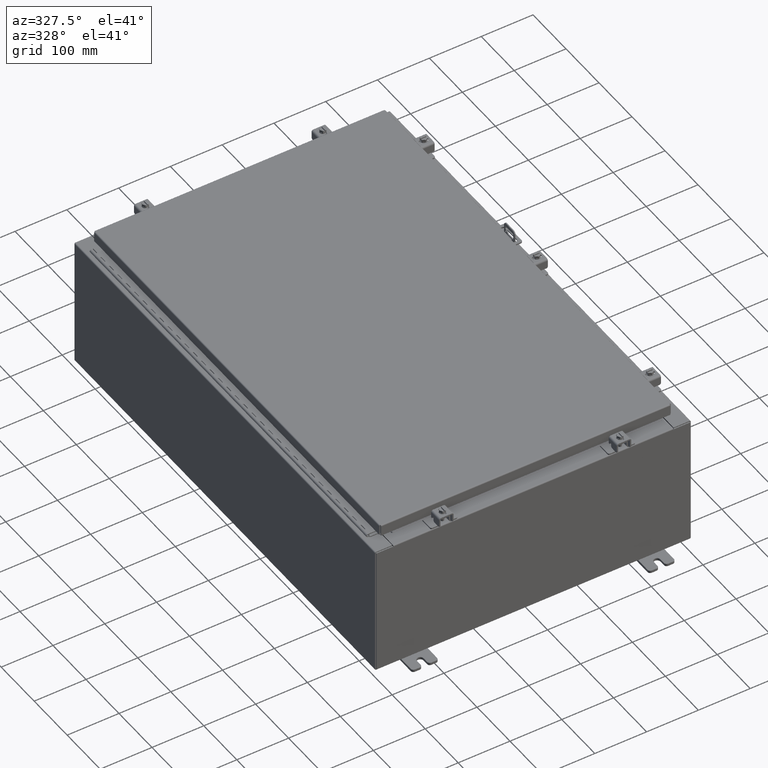
[diagram: clean part render]
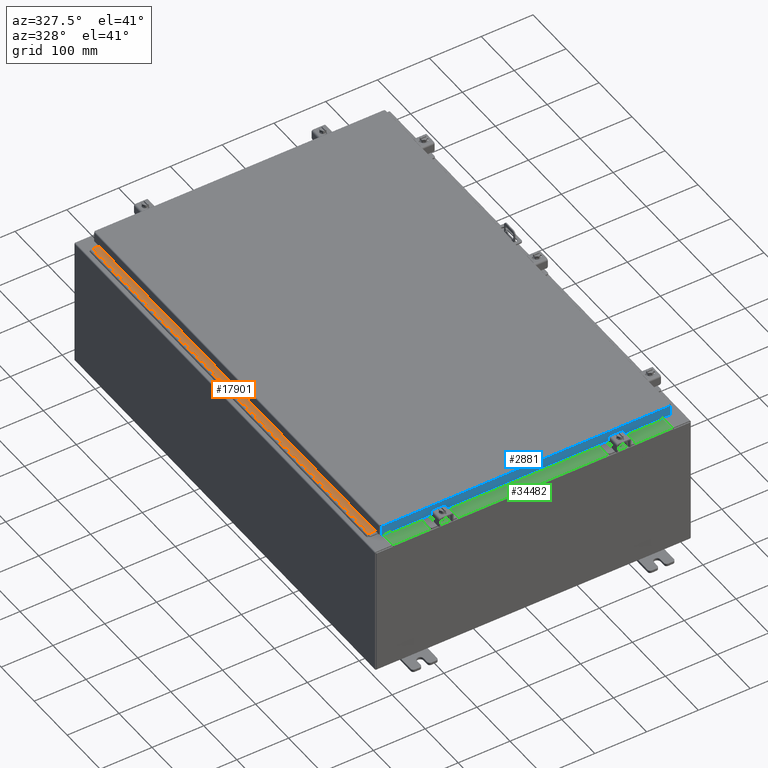
[diagram: same view with three faces highlighted in distinct colors, each labeled with its STEP entity id]
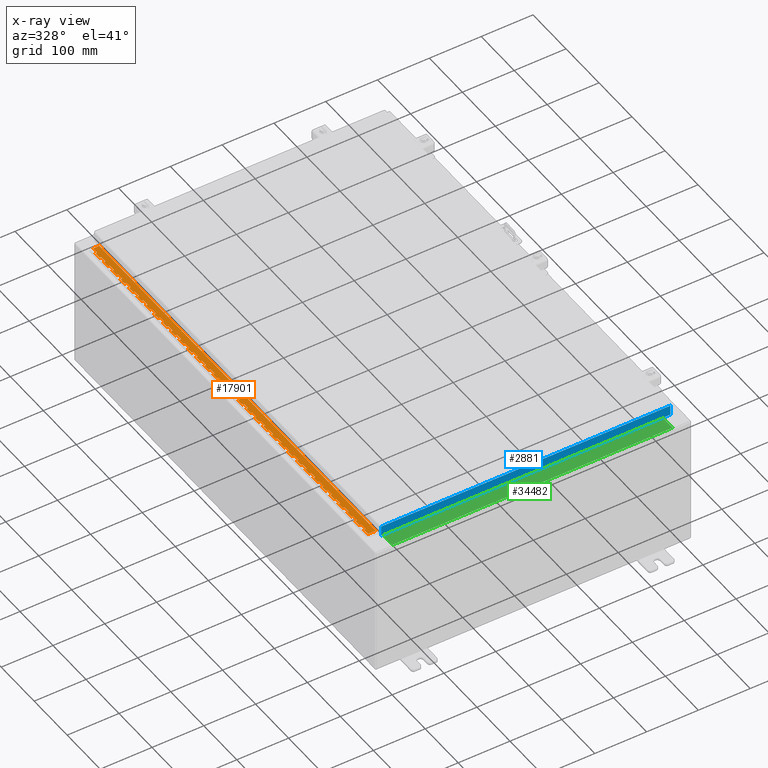
[diagram: x-ray of the same camera — body ghosted, the three highlighted faces saturated]
A machine part, auxiliary view with three faces highlighted in distinct colors.
The next image is the same camera in x-ray (body ghosted, the three faces saturated) — at least one of them is partly hidden behind the body in this view.
Their STEP definitions:

[orange] entity #17901 — the highlighted planar face has unit normal (-0, -0, 1).
#53 = DIRECTION ( 'NONE',  ( 1.407623677753743800E-028, -2.012912480914904400E-028, -1.000000000000000000 ) ) ;
#152 = VERTEX_POINT ( 'NONE', #11163 ) ;
#156 = LINE ( 'NONE', #36674, #25322 ) ;
#159 = CARTESIAN_POINT ( 'NONE',  ( -0.6869999999999987200, 0.6755000000000095400, -33.00000000000000000 ) ) ;
#261 = EDGE_CURVE ( 'NONE', #29080, #19931, #8048, .T. ) ;
#266 = VECTOR ( 'NONE', #15971, 39.37007874015748100 ) ;
#335 = ORIENTED_EDGE ( 'NONE', *, *, #2686, .T. ) ;
#414 = ORIENTED_EDGE ( 'NONE', *, *, #25887, .F. ) ;
#426 = VECTOR ( 'NONE', #25888, 39.37007874015748100 ) ;
#437 = VECTOR ( 'NONE', #7463, 39.37007874015748100 ) ;
#540 = VERTEX_POINT ( 'NONE', #11322 ) ;
#575 = LINE ( 'NONE', #33723, #9341 ) ;
#673 = VERTEX_POINT ( 'NONE', #31718 ) ;
#713 = VECTOR ( 'NONE', #4417, 39.37007874015748100 ) ;
#739 = LINE ( 'NONE', #37056, #42413 ) ;
#792 = CARTESIAN_POINT ( 'NONE',  ( -0.6869999999999965000, 0.8005000000000109800, -0.4999999999999973900 ) ) ;
#794 = VECTOR ( 'NONE', #36705, 39.37007874015748100 ) ;
#816 = LINE ( 'NONE', #2211, #17275 ) ;
#824 = VERTEX_POINT ( 'NONE', #35743 ) ;
#850 = VERTEX_POINT ( 'NONE', #42513 ) ;
#906 = CARTESIAN_POINT ( 'NONE',  ( -0.6869999999999987200, 0.6755000000000116500, 0.0000000000000000000 ) ) ;
#909 = VECTOR ( 'NONE', #27748, 39.37007874015748100 ) ;
#914 = CARTESIAN_POINT ( 'NONE',  ( -0.6869999999999965000, 0.8005000000000109800, -12.99999999999999800 ) ) ;
#924 = EDGE_CURVE ( 'NONE', #2624, #23283, #5435, .T. ) ;
#972 = VECTOR ( 'NONE', #8880, 39.37007874015748100 ) ;
#990 = CARTESIAN_POINT ( 'NONE',  ( -0.6869999999999987200, 0.6755000000000095400, -33.00000000000000000 ) ) ;
#1150 = LINE ( 'NONE', #31705, #16585 ) ;
#1264 = CARTESIAN_POINT ( 'NONE',  ( -0.6869999999999987200, 0.6755000000000095400, -33.00000000000000000 ) ) ;
#1321 = DIRECTION ( 'NONE',  ( -3.389037039080654100E-015, -1.000000000000000000, -2.012905719409313600E-028 ) ) ;
#1349 = DIRECTION ( 'NONE',  ( -1.407623677753743800E-028, 2.012912480914904400E-028, 1.000000000000000000 ) ) ;
#1363 = VERTEX_POINT ( 'NONE', #22172 ) ;
#1378 = DIRECTION ( 'NONE',  ( 3.389037039080654100E-015, 1.000000000000000000, 2.012905719409313600E-028 ) ) ;
#1403 = CARTESIAN_POINT ( 'NONE',  ( -0.6870000000000074900, 0.5505000000000120900, -3.000000000000001800 ) ) ;
#1436 = DIRECTION ( 'NONE',  ( -1.407623677753743800E-028, 2.012912480914904400E-028, 1.000000000000000000 ) ) ;
#1437 = CARTESIAN_POINT ( 'NONE',  ( -0.6869999999999987200, 0.6755000000000095400, -33.00000000000000000 ) ) ;
#1476 = CARTESIAN_POINT ( 'NONE',  ( -0.6869999999999965000, 0.5505000000000098700, -10.00000000000000000 ) ) ;
#1479 = ORIENTED_EDGE ( 'NONE', *, *, #36063, .F. ) ;
#1485 = LINE ( 'NONE', #13022, #42140 ) ;
#1498 = CARTESIAN_POINT ( 'NONE',  ( -0.6869999999999987200, 0.5505000000000120900, -1.999999999999998400 ) ) ;
#1554 = EDGE_CURVE ( 'NONE', #35070, #15006, #13172, .T. ) ;
#1572 = EDGE_CURVE ( 'NONE', #33645, #36191, #19821, .T. ) ;
#1652 = ORIENTED_EDGE ( 'NONE', *, *, #3755, .T. ) ;
#1796 = DIRECTION ( 'NONE',  ( 3.389037039080654100E-015, 1.000000000000000000, 2.012905719409313600E-028 ) ) ;
#1830 = VECTOR ( 'NONE', #20184, 39.37007874015748100 ) ;
#1866 = ORIENTED_EDGE ( 'NONE', *, *, #18163, .F. ) ;
#1983 = CARTESIAN_POINT ( 'NONE',  ( -0.6869999999999965000, 0.6755000000000204200, -5.499999999999997300 ) ) ;
#2011 = VERTEX_POINT ( 'NONE', #34774 ) ;
#2024 = ORIENTED_EDGE ( 'NONE', *, *, #35973, .F. ) ;
#2027 = CARTESIAN_POINT ( 'NONE',  ( -0.6869999999999987200, 0.6755000000000095400, -33.00000000000000000 ) ) ;
#2060 = CARTESIAN_POINT ( 'NONE',  ( -0.6869999999999987200, 0.5505000000000120900, -0.4999999999999973900 ) ) ;
#2125 = ORIENTED_EDGE ( 'NONE', *, *, #13804, .T. ) ;
#2186 = CARTESIAN_POINT ( 'NONE',  ( -0.6869999999999987200, 0.6755000000000095400, -33.00000000000000000 ) ) ;
#2211 = CARTESIAN_POINT ( 'NONE',  ( -0.6869999999999987200, 0.6755000000000095400, -33.00000000000000000 ) ) ;
#2259 = VERTEX_POINT ( 'NONE', #3142 ) ;
#2261 = VERTEX_POINT ( 'NONE', #42665 ) ;
#2280 = DIRECTION ( 'NONE',  ( 3.389037039080654100E-015, 1.000000000000000000, 2.012905719409313600E-028 ) ) ;
#2288 = CARTESIAN_POINT ( 'NONE',  ( -0.6869999999999987200, 0.5505000000000120900, -0.9999999999999992200 ) ) ;
#2321 = DIRECTION ( 'NONE',  ( -3.389037039080654100E-015, -1.000000000000000000, -2.012905719409313600E-028 ) ) ;
#2414 = CARTESIAN_POINT ( 'NONE',  ( -0.6869999999999987200, 0.5505000000000098700, -8.500000000000000000 ) ) ;
#2453 = CARTESIAN_POINT ( 'NONE',  ( -0.6869999999999987200, 0.5505000000000098700, -31.00000000000000000 ) ) ;
#2456 = CARTESIAN_POINT ( 'NONE',  ( -0.6869999999999965000, 0.6755000000000095400, -27.00000000000000000 ) ) ;
#2483 = DIRECTION ( 'NONE',  ( 3.369016658928328400E-015, 1.000000000000000000, 2.013950086894919600E-028 ) ) ;
#2565 = VERTEX_POINT ( 'NONE', #1498 ) ;
#2624 = VERTEX_POINT ( 'NONE', #15026 ) ;
#2681 = ORIENTED_EDGE ( 'NONE', *, *, #39312, .F. ) ;
#2686 = EDGE_CURVE ( 'NONE', #38010, #5076, #31025, .T. ) ;
#2692 = CARTESIAN_POINT ( 'NONE',  ( -0.6869999999999987200, 0.5505000000000098700, -28.00000000000000000 ) ) ;
#2693 = CARTESIAN_POINT ( 'NONE',  ( -0.6869999999999987200, 0.5505000000000120900, -4.500000000000002700 ) ) ;
#2755 = VECTOR ( 'NONE', #22788, 39.37007874015748100 ) ;
#2783 = VERTEX_POINT ( 'NONE', #22342 ) ;
#2804 = ORIENTED_EDGE ( 'NONE', *, *, #9028, .T. ) ;
#2805 = CARTESIAN_POINT ( 'NONE',  ( -0.6869999999999987200, 0.5505000000000098700, -29.99999999999999600 ) ) ;
#2946 = CARTESIAN_POINT ( 'NONE',  ( -0.6870000000000009400, 0.8005000000000109800, -9.499999999999998200 ) ) ;
#2957 = VERTEX_POINT ( 'NONE', #7531 ) ;
#3036 = CARTESIAN_POINT ( 'NONE',  ( -0.6870000000000030500, -0.6244999999999915100, 0.0000000000000000000 ) ) ;
#3132 = CARTESIAN_POINT ( 'NONE',  ( -0.6869999999999987200, 0.6755000000000095400, -33.00000000000000000 ) ) ;
#3142 = CARTESIAN_POINT ( 'NONE',  ( -0.6869999999999987200, 0.6755000000000095400, -8.500000000000000000 ) ) ;
#3150 = CARTESIAN_POINT ( 'NONE',  ( -0.6869999999999987200, 0.6755000000000095400, -33.00000000000000000 ) ) ;
#3160 = EDGE_CURVE ( 'NONE', #14012, #28324, #22264, .T. ) ;
#3195 = VERTEX_POINT ( 'NONE', #41585 ) ;
#3197 = VERTEX_POINT ( 'NONE', #18580 ) ;
#3198 = DIRECTION ( 'NONE',  ( 3.389037039080654100E-015, 1.000000000000000000, 2.012905719409313600E-028 ) ) ;
#3224 = EDGE_CURVE ( 'NONE', #23660, #673, #12516, .T. ) ;
#3248 = ORIENTED_EDGE ( 'NONE', *, *, #34509, .F. ) ;
#3264 = ORIENTED_EDGE ( 'NONE', *, *, #36870, .F. ) ;
#3301 = VERTEX_POINT ( 'NONE', #35852 ) ;
#3323 = CARTESIAN_POINT ( 'NONE',  ( -0.6869999999999987200, 0.6755000000000116500, -2.500000000000000000 ) ) ;
#3362 = EDGE_CURVE ( 'NONE', #4154, #15152, #17106, .T. ) ;
#3364 = CARTESIAN_POINT ( 'NONE',  ( -0.6869999999999987200, 0.5505000000000098700, -14.49999999999999800 ) ) ;
#3407 = VECTOR ( 'NONE', #1378, 39.37007874015748100 ) ;
#3447 = EDGE_CURVE ( 'NONE', #2259, #26241, #13005, .T. ) ;
#3464 = VERTEX_POINT ( 'NONE', #13724 ) ;
#3472 = ORIENTED_EDGE ( 'NONE', *, *, #30828, .T. ) ;
#3575 = CARTESIAN_POINT ( 'NONE',  ( -0.6869999999999965000, 0.8005000000000197500, -6.499999999999999100 ) ) ;
#3619 = LINE ( 'NONE', #3575, #11318 ) ;
#3653 = LINE ( 'NONE', #16882, #22155 ) ;
#3674 = LINE ( 'NONE', #990, #11377 ) ;
#3683 = ORIENTED_EDGE ( 'NONE', *, *, #22547, .F. ) ;
#3707 = ORIENTED_EDGE ( 'NONE', *, *, #22757, .F. ) ;
#3725 = VECTOR ( 'NONE', #22624, 39.37007874015748100 ) ;
#3743 = VECTOR ( 'NONE', #26049, 39.37007874015748100 ) ;
#3755 = EDGE_CURVE ( 'NONE', #32007, #30551, #9364, .T. ) ;
#3838 = DIRECTION ( 'NONE',  ( -1.407623677753743800E-028, 2.012912480914904400E-028, 1.000000000000000000 ) ) ;
#3857 = EDGE_CURVE ( 'NONE', #23118, #38790, #15010, .T. ) ;
#3873 = VECTOR ( 'NONE', #18211, 39.37007874015748100 ) ;
#3894 = CARTESIAN_POINT ( 'NONE',  ( -0.6869999999999987200, 0.6755000000000095400, -14.99999999999999800 ) ) ;
#3987 = ORIENTED_EDGE ( 'NONE', *, *, #36567, .F. ) ;
#4063 = VERTEX_POINT ( 'NONE', #26709 ) ;
#4154 = VERTEX_POINT ( 'NONE', #37032 ) ;
#4157 = CARTESIAN_POINT ( 'NONE',  ( -0.6869999999999987200, 0.5505000000000098700, -11.99999999999999800 ) ) ;
#4161 = EDGE_CURVE ( 'NONE', #38957, #33726, #3674, .T. ) ;
#4201 = DIRECTION ( 'NONE',  ( 1.407623677753743800E-028, -2.012912480914904400E-028, -1.000000000000000000 ) ) ;
#4235 = ORIENTED_EDGE ( 'NONE', *, *, #12334, .F. ) ;
#4245 = LINE ( 'NONE', #2027, #38165 ) ;
#4254 = VERTEX_POINT ( 'NONE', #28159 ) ;
#4357 = VERTEX_POINT ( 'NONE', #2288 ) ;
#4366 = DIRECTION ( 'NONE',  ( 1.407623677753743800E-028, -2.012912480914904400E-028, -1.000000000000000000 ) ) ;
#4378 = VECTOR ( 'NONE', #32332, 39.37007874015748100 ) ;
#4417 = DIRECTION ( 'NONE',  ( 3.389037039080654100E-015, 1.000000000000000000, 2.012905719409313600E-028 ) ) ;
#4717 = LINE ( 'NONE', #28778, #29898 ) ;
#4771 = DIRECTION ( 'NONE',  ( -1.407623677753743800E-028, 2.012912480914904400E-028, 1.000000000000000000 ) ) ;
#4781 = CARTESIAN_POINT ( 'NONE',  ( -0.6869999999999965000, 0.8005000000000088700, -27.00000000000000000 ) ) ;
#4804 = EDGE_CURVE ( 'NONE', #10773, #29712, #36025, .T. ) ;
#5076 = VERTEX_POINT ( 'NONE', #32430 ) ;
#5077 = LINE ( 'NONE', #16706, #12783 ) ;
#5079 = CARTESIAN_POINT ( 'NONE',  ( -0.6869999999999965000, 0.6755000000000095400, -11.99999999999999800 ) ) ;
#5109 = ORIENTED_EDGE ( 'NONE', *, *, #33437, .T. ) ;
#5142 = VERTEX_POINT ( 'NONE', #26096 ) ;
#5147 = CARTESIAN_POINT ( 'NONE',  ( -0.6869999999999987200, 0.5505000000000098700, -9.000000000000001800 ) ) ;
#5207 = EDGE_CURVE ( 'NONE', #28324, #34692, #12880, .T. ) ;
#5275 = LINE ( 'NONE', #31066, #12983 ) ;
#5342 = ORIENTED_EDGE ( 'NONE', *, *, #28787, .F. ) ;
#5355 = CARTESIAN_POINT ( 'NONE',  ( -0.6869999999999987200, 0.6755000000000095400, -33.00000000000000000 ) ) ;
#5371 = EDGE_CURVE ( 'NONE', #40919, #25528, #33919, .T. ) ;
#5379 = CARTESIAN_POINT ( 'NONE',  ( -0.6870000000000074900, 0.5505000000000120900, -25.50000000000000400 ) ) ;
#5403 = ORIENTED_EDGE ( 'NONE', *, *, #6316, .F. ) ;
#5435 = LINE ( 'NONE', #19910, #13148 ) ;
#5464 = CARTESIAN_POINT ( 'NONE',  ( -0.6869999999999965000, 0.8005000000000088700, -28.00000000000000000 ) ) ;
#5510 = EDGE_CURVE ( 'NONE', #24554, #16464, #19018, .T. ) ;
#5517 = CARTESIAN_POINT ( 'NONE',  ( -0.6869999999999987200, 0.6755000000000095400, -7.500000000000000000 ) ) ;
#5540 = DIRECTION ( 'NONE',  ( -1.407623677753743800E-028, 2.012912480914904400E-028, 1.000000000000000000 ) ) ;
#5645 = CARTESIAN_POINT ( 'NONE',  ( -0.6869999999999987200, 0.6755000000000095400, -33.00000000000000000 ) ) ;
#5671 = ORIENTED_EDGE ( 'NONE', *, *, #36424, .T. ) ;
#5807 = VERTEX_POINT ( 'NONE', #10110 ) ;
#5817 = VECTOR ( 'NONE', #32379, 39.37007874015748100 ) ;
#5828 = VERTEX_POINT ( 'NONE', #33222 ) ;
#5842 = LINE ( 'NONE', #17218, #39764 ) ;
#5884 = LINE ( 'NONE', #17383, #22322 ) ;
#5940 = LINE ( 'NONE', #33452, #39857 ) ;
#6037 = ORIENTED_EDGE ( 'NONE', *, *, #22663, .F. ) ;
#6039 = CARTESIAN_POINT ( 'NONE',  ( -0.6869999999999965000, 0.8005000000000109800, -16.00000000000000000 ) ) ;
#6074 = CARTESIAN_POINT ( 'NONE',  ( -0.6869999999999987200, 0.6755000000000116500, -3.499999999999999100 ) ) ;
#6081 = VECTOR ( 'NONE', #35465, 39.37007874015748100 ) ;
#6220 = VERTEX_POINT ( 'NONE', #5517 ) ;
#6316 = EDGE_CURVE ( 'NONE', #5828, #4254, #25083, .T. ) ;
#6373 = EDGE_CURVE ( 'NONE', #33660, #25528, #23030, .T. ) ;
#6451 = DIRECTION ( 'NONE',  ( -1.407623677753743800E-028, 2.012912480914904400E-028, 1.000000000000000000 ) ) ;
#6491 = DIRECTION ( 'NONE',  ( -1.407623677753743800E-028, 2.012912480914904400E-028, 1.000000000000000000 ) ) ;
#6557 = VECTOR ( 'NONE', #2280, 39.37007874015748100 ) ;
#6610 = LINE ( 'NONE', #9553, #29735 ) ;
#6666 = ORIENTED_EDGE ( 'NONE', *, *, #8365, .F. ) ;
#6672 = CARTESIAN_POINT ( 'NONE',  ( -0.6869999999999987200, 0.5505000000000120900, -22.50000000000000000 ) ) ;
#6698 = VERTEX_POINT ( 'NONE', #8029 ) ;
#6716 = ORIENTED_EDGE ( 'NONE', *, *, #29691, .F. ) ;
#6819 = VERTEX_POINT ( 'NONE', #8744 ) ;
#6827 = EDGE_CURVE ( 'NONE', #32375, #41079, #22995, .T. ) ;
#6859 = LINE ( 'NONE', #29427, #23286 ) ;
#6953 = ORIENTED_EDGE ( 'NONE', *, *, #34469, .F. ) ;
#7011 = LINE ( 'NONE', #7499, #40951 ) ;
#7028 = VERTEX_POINT ( 'NONE', #16489 ) ;
#7156 = VECTOR ( 'NONE', #23615, 39.37007874015748100 ) ;
#7225 = ORIENTED_EDGE ( 'NONE', *, *, #22871, .F. ) ;
#7312 = PLANE ( 'NONE',  #29384 ) ;
#7354 = ORIENTED_EDGE ( 'NONE', *, *, #19739, .F. ) ;
#7413 = LINE ( 'NONE', #37347, #32613 ) ;
#7434 = DIRECTION ( 'NONE',  ( -3.389037039080654100E-015, -1.000000000000000000, -2.012905719409313600E-028 ) ) ;
#7442 = CARTESIAN_POINT ( 'NONE',  ( -0.6869999999999987200, 0.6755000000000116500, -23.50000000000000000 ) ) ;
#7445 = VERTEX_POINT ( 'NONE', #15596 ) ;
#7463 = DIRECTION ( 'NONE',  ( -3.389037039080654100E-015, -1.000000000000000000, -2.012905719409313600E-028 ) ) ;
#7465 = DIRECTION ( 'NONE',  ( -3.389037039080654100E-015, -1.000000000000000000, -2.012905719409313600E-028 ) ) ;
#7499 = CARTESIAN_POINT ( 'NONE',  ( -0.6869999999999965000, 0.8005000000000109800, -21.00000000000000000 ) ) ;
#7508 = VERTEX_POINT ( 'NONE', #14587 ) ;
#7531 = CARTESIAN_POINT ( 'NONE',  ( -0.6870000000000074900, 0.5505000000000098700, -10.50000000000000000 ) ) ;
#7555 = VECTOR ( 'NONE', #12530, 39.37007874015748100 ) ;
#7570 = CARTESIAN_POINT ( 'NONE',  ( -0.6869999999999965000, 0.6755000000000095400, -27.50000000000000000 ) ) ;
#7582 = CARTESIAN_POINT ( 'NONE',  ( -0.6869999999999987200, 0.6755000000000095400, -13.50000000000000000 ) ) ;
#7597 = CARTESIAN_POINT ( 'NONE',  ( -0.6869999999999987200, 0.6755000000000095400, -6.999999999999998200 ) ) ;
#7629 = CARTESIAN_POINT ( 'NONE',  ( -0.6869999999999965000, 0.8005000000000197500, -5.999999999999999100 ) ) ;
#7639 = EDGE_CURVE ( 'NONE', #5828, #23698, #816, .T. ) ;
#7647 = ORIENTED_EDGE ( 'NONE', *, *, #23909, .F. ) ;
#7668 = CARTESIAN_POINT ( 'NONE',  ( -0.6869999999999987200, 0.5505000000000098700, -31.50000000000000400 ) ) ;
#7743 = CARTESIAN_POINT ( 'NONE',  ( -0.6869999999999987200, 0.8005000000000109800, -10.00000000000000000 ) ) ;
#7776 = VECTOR ( 'NONE', #3198, 39.37007874015748100 ) ;
#7832 = EDGE_CURVE ( 'NONE', #18224, #18560, #23933, .T. ) ;
#7878 = LINE ( 'NONE', #12456, #34097 ) ;
#7950 = CARTESIAN_POINT ( 'NONE',  ( -0.6869999999999987200, 0.6755000000000095400, -8.000000000000000000 ) ) ;
#8029 = CARTESIAN_POINT ( 'NONE',  ( -0.6869999999999987200, 0.5505000000000098700, -28.50000000000000000 ) ) ;
#8048 = LINE ( 'NONE', #31557, #21419 ) ;
#8101 = ORIENTED_EDGE ( 'NONE', *, *, #9022, .F. ) ;
#8103 = CARTESIAN_POINT ( 'NONE',  ( -0.6869999999999987200, 0.5505000000000098700, -31.50000000000000400 ) ) ;
#8200 = EDGE_CURVE ( 'NONE', #38010, #824, #38952, .T. ) ;
#8317 = VECTOR ( 'NONE', #38103, 39.37007874015748100 ) ;
#8320 = EDGE_CURVE ( 'NONE', #33645, #5142, #9635, .T. ) ;
#8351 = VERTEX_POINT ( 'NONE', #2456 ) ;
#8365 = EDGE_CURVE ( 'NONE', #29080, #36506, #8589, .T. ) ;
#8387 = ORIENTED_EDGE ( 'NONE', *, *, #27685, .T. ) ;
#8486 = VECTOR ( 'NONE', #1349, 39.37007874015748100 ) ;
#8530 = VERTEX_POINT ( 'NONE', #27131 ) ;
#8573 = DIRECTION ( 'NONE',  ( -1.407623677753743800E-028, 2.012912480914904400E-028, 1.000000000000000000 ) ) ;
#8589 = LINE ( 'NONE', #25551, #7555 ) ;
#8619 = LINE ( 'NONE', #4781, #909 ) ;
#8638 = VERTEX_POINT ( 'NONE', #1403 ) ;
#8662 = ORIENTED_EDGE ( 'NONE', *, *, #28340, .T. ) ;
#8744 = CARTESIAN_POINT ( 'NONE',  ( -0.6869999999999987200, 0.5505000000000120900, -26.00000000000000000 ) ) ;
#8792 = DIRECTION ( 'NONE',  ( 3.389037039080654100E-015, 1.000000000000000000, 2.012905719409313600E-028 ) ) ;
#8864 = VECTOR ( 'NONE', #20319, 39.37007874015748100 ) ;
#8880 = DIRECTION ( 'NONE',  ( -3.389037039080654100E-015, -1.000000000000000000, -2.012905719409313600E-028 ) ) ;
#8961 = VERTEX_POINT ( 'NONE', #15335 ) ;
#9022 = EDGE_CURVE ( 'NONE', #38149, #11630, #26514, .T. ) ;
#9028 = EDGE_CURVE ( 'NONE', #15541, #34692, #35287, .T. ) ;
#9058 = VECTOR ( 'NONE', #12340, 39.37007874015748100 ) ;
#9068 = VERTEX_POINT ( 'NONE', #2693 ) ;
#9077 = VECTOR ( 'NONE', #20284, 39.37007874015748100 ) ;
#9165 = LINE ( 'NONE', #41582, #24548 ) ;
#9169 = VERTEX_POINT ( 'NONE', #23336 ) ;
#9179 = DIRECTION ( 'NONE',  ( 1.407623677753743800E-028, -2.012912480914904400E-028, -1.000000000000000000 ) ) ;
#9190 = EDGE_CURVE ( 'NONE', #42166, #16305, #11620, .T. ) ;
#9228 = EDGE_CURVE ( 'NONE', #22764, #23698, #10564, .T. ) ;
#9227 = ORIENTED_EDGE ( 'NONE', *, *, #26387, .F. ) ;
#9230 = ORIENTED_EDGE ( 'NONE', *, *, #42334, .F. ) ;
#9282 = CARTESIAN_POINT ( 'NONE',  ( -0.6869999999999965000, 0.6755000000000095400, -28.00000000000000000 ) ) ;
#9341 = VECTOR ( 'NONE', #7434, 39.37007874015748100 ) ;
#9364 = LINE ( 'NONE', #5355, #19127 ) ;
#9405 = VECTOR ( 'NONE', #18568, 39.37007874015748100 ) ;
#9524 = VERTEX_POINT ( 'NONE', #2060 ) ;
#9544 = VERTEX_POINT ( 'NONE', #21747 ) ;
#9553 = CARTESIAN_POINT ( 'NONE',  ( -0.6869999999999987200, 0.6755000000000095400, -33.00000000000000000 ) ) ;
#9605 = ORIENTED_EDGE ( 'NONE', *, *, #3447, .F. ) ;
#9635 = LINE ( 'NONE', #38511, #26066 ) ;
#9788 = CARTESIAN_POINT ( 'NONE',  ( -0.6869999999999987200, 0.5505000000000098700, -19.00000000000000000 ) ) ;
#9981 = ORIENTED_EDGE ( 'NONE', *, *, #12870, .F. ) ;
#10013 = LINE ( 'NONE', #13515, #26438 ) ;
#10071 = ORIENTED_EDGE ( 'NONE', *, *, #28343, .T. ) ;
#10105 = DIRECTION ( 'NONE',  ( -1.407623677753743800E-028, 2.012912480914904400E-028, 1.000000000000000000 ) ) ;
#10110 = CARTESIAN_POINT ( 'NONE',  ( -0.6869999999999987200, 0.5505000000000098700, -32.00000000000000000 ) ) ;
#10144 = CARTESIAN_POINT ( 'NONE',  ( -0.6869999999999965000, 0.8005000000000088700, -8.000000000000000000 ) ) ;
#10155 = VECTOR ( 'NONE', #32052, 39.37007874015748100 ) ;
#10269 = VECTOR ( 'NONE', #34994, 39.37007874015748100 ) ;
#10342 = VERTEX_POINT ( 'NONE', #33637 ) ;
#10391 = LINE ( 'NONE', #29541, #34564 ) ;
#10412 = LINE ( 'NONE', #11194, #25815 ) ;
#10564 = LINE ( 'NONE', #26782, #794 ) ;
#10597 = DIRECTION ( 'NONE',  ( -3.389037039080654100E-015, -1.000000000000000000, -2.012905719409313600E-028 ) ) ;
#10599 = VERTEX_POINT ( 'NONE', #28593 ) ;
#10625 = VERTEX_POINT ( 'NONE', #35356 ) ;
#10628 = DIRECTION ( 'NONE',  ( 3.369016658928328400E-015, 1.000000000000000000, 2.013950086894919200E-028 ) ) ;
#10640 = CARTESIAN_POINT ( 'NONE',  ( -0.6869999999999987200, 0.5505000000000120900, -1.500000000000000900 ) ) ;
#10722 = VECTOR ( 'NONE', #1796, 39.37007874015748100 ) ;
#10763 = CARTESIAN_POINT ( 'NONE',  ( -0.6869999999999987200, 0.5505000000000120900, -20.00000000000000000 ) ) ;
#10773 = VERTEX_POINT ( 'NONE', #19668 ) ;
#10821 = DIRECTION ( 'NONE',  ( 3.389037039080654100E-015, 1.000000000000000000, 2.012905719409313600E-028 ) ) ;
#10822 = DIRECTION ( 'NONE',  ( 1.407623677753743800E-028, -2.012912480914904400E-028, -1.000000000000000000 ) ) ;
#10866 = LINE ( 'NONE', #18821, #27322 ) ;
#10954 = CARTESIAN_POINT ( 'NONE',  ( -0.6869999999999987200, 0.5505000000000098700, -16.50000000000000000 ) ) ;
#10961 = DIRECTION ( 'NONE',  ( 1.407623677753743800E-028, -2.012912480914904400E-028, -1.000000000000000000 ) ) ;
#10962 = VERTEX_POINT ( 'NONE', #17210 ) ;
#11003 = CARTESIAN_POINT ( 'NONE',  ( -0.6869999999999987200, 0.8005000000000109800, -32.50000000000000000 ) ) ;
#11088 = VERTEX_POINT ( 'NONE', #14329 ) ;
#11100 = LINE ( 'NONE', #14612, #3407 ) ;
#11137 = CARTESIAN_POINT ( 'NONE',  ( -0.6869999999999987200, 0.6755000000000095400, -33.00000000000000000 ) ) ;
#11145 = EDGE_CURVE ( 'NONE', #3197, #21702, #19734, .T. ) ;
#11152 = ORIENTED_EDGE ( 'NONE', *, *, #38430, .F. ) ;
#11163 = CARTESIAN_POINT ( 'NONE',  ( -0.6870000000000009400, 0.6755000000000116500, -21.00000000000000000 ) ) ;
#11166 = LINE ( 'NONE', #11137, #37365 ) ;
#11171 = CARTESIAN_POINT ( 'NONE',  ( -0.6869999999999987200, 0.6755000000000116500, -22.50000000000000000 ) ) ;
#11185 = CARTESIAN_POINT ( 'NONE',  ( -0.6869999999999987200, 0.5505000000000098700, -13.50000000000000000 ) ) ;
#11189 = CARTESIAN_POINT ( 'NONE',  ( -0.6869999999999987200, 0.6755000000000116500, -17.50000000000000000 ) ) ;
#11194 = CARTESIAN_POINT ( 'NONE',  ( -0.6869999999999987200, 0.8005000000000109800, -4.000000000000000900 ) ) ;
#11234 = ORIENTED_EDGE ( 'NONE', *, *, #15570, .F. ) ;
#11300 = EDGE_CURVE ( 'NONE', #18793, #17964, #11484, .T. ) ;
#11318 = VECTOR ( 'NONE', #19938, 39.37007874015748100 ) ;
#11322 = CARTESIAN_POINT ( 'NONE',  ( -0.6870000000000009400, 0.07550000000000989300, 0.0000000000000000000 ) ) ;
#11373 = ORIENTED_EDGE ( 'NONE', *, *, #22390, .F. ) ;
#11377 = VECTOR ( 'NONE', #27279, 39.37007874015748100 ) ;
#11437 = LINE ( 'NONE', #7629, #38698 ) ;
#11470 = DIRECTION ( 'NONE',  ( -3.389037039080654100E-015, -1.000000000000000000, -2.012905719409313600E-028 ) ) ;
#11477 = EDGE_CURVE ( 'NONE', #26913, #9524, #22769, .T. ) ;
#11481 = DIRECTION ( 'NONE',  ( -1.407623677753743800E-028, 2.012912480914904400E-028, 1.000000000000000000 ) ) ;
#11484 = LINE ( 'NONE', #3132, #2755 ) ;
#11514 = CARTESIAN_POINT ( 'NONE',  ( -0.6869999999999987200, 0.6755000000000116500, -1.500000000000000900 ) ) ;
#11545 = VECTOR ( 'NONE', #13555, 39.37007874015748100 ) ;
#11620 = LINE ( 'NONE', #10144, #1830 ) ;
#11630 = VERTEX_POINT ( 'NONE', #8103 ) ;
#11633 = ORIENTED_EDGE ( 'NONE', *, *, #21142, .F. ) ;
#11661 = CARTESIAN_POINT ( 'NONE',  ( -0.6869999999999965000, 0.8005000000000109800, -14.49999999999999800 ) ) ;
#11751 = EDGE_CURVE ( 'NONE', #38409, #673, #11437, .T. ) ;
#11843 = DIRECTION ( 'NONE',  ( 1.407623677753743800E-028, -2.012912480914904400E-028, -1.000000000000000000 ) ) ;
#12008 = CARTESIAN_POINT ( 'NONE',  ( -0.6869999999999987200, 0.6755000000000095400, -33.00000000000000000 ) ) ;
#12040 = DIRECTION ( 'NONE',  ( -3.389037039080654100E-015, -1.000000000000000000, -2.012905719409313600E-028 ) ) ;
#12118 = DIRECTION ( 'NONE',  ( -1.407623677753743800E-028, 2.012912480914904400E-028, 1.000000000000000000 ) ) ;
#12129 = EDGE_CURVE ( 'NONE', #33905, #14007, #35078, .T. ) ;
#12200 = CARTESIAN_POINT ( 'NONE',  ( -0.6869999999999987200, 0.8005000000000197500, -24.99999999999999600 ) ) ;
#12313 = LINE ( 'NONE', #11661, #19990 ) ;
#12333 = LINE ( 'NONE', #41089, #31315 ) ;
#12334 = EDGE_CURVE ( 'NONE', #3301, #30554, #575, .T. ) ;
#12340 = DIRECTION ( 'NONE',  ( -3.389037039080654100E-015, -1.000000000000000000, -2.012905719409313600E-028 ) ) ;
#12456 = CARTESIAN_POINT ( 'NONE',  ( -0.6869999999999987200, 0.5505000000000011000, -26.50000000000000400 ) ) ;
#12484 = DIRECTION ( 'NONE',  ( -3.389037039080654100E-015, -1.000000000000000000, -2.012905719409313600E-028 ) ) ;
#12488 = LINE ( 'NONE', #42329, #3725 ) ;
#12516 = LINE ( 'NONE', #2186, #28943 ) ;
#12530 = DIRECTION ( 'NONE',  ( -3.389037039080654100E-015, -1.000000000000000000, -2.012905719409313600E-028 ) ) ;
#12586 = LINE ( 'NONE', #32854, #20255 ) ;
#12716 = ORIENTED_EDGE ( 'NONE', *, *, #17976, .T. ) ;
#12777 = ORIENTED_EDGE ( 'NONE', *, *, #18220, .F. ) ;
#12783 = VECTOR ( 'NONE', #24156, 39.37007874015748100 ) ;
#12785 = EDGE_CURVE ( 'NONE', #26241, #15821, #3653, .T. ) ;
#12825 = CARTESIAN_POINT ( 'NONE',  ( -0.6869999999999987200, 0.6755000000000204200, -24.99999999999999600 ) ) ;
#12862 = DIRECTION ( 'NONE',  ( -1.407623677753743800E-028, 2.012912480914904400E-028, 1.000000000000000000 ) ) ;
#12870 = EDGE_CURVE ( 'NONE', #20501, #30551, #25722, .T. ) ;
#12880 = LINE ( 'NONE', #33138, #13905 ) ;
#12983 = VECTOR ( 'NONE', #1321, 39.37007874015748100 ) ;
#13005 = LINE ( 'NONE', #13574, #29436 ) ;
#13022 = CARTESIAN_POINT ( 'NONE',  ( -0.6869999999999987200, 0.6755000000000095400, -33.00000000000000000 ) ) ;
#13148 = VECTOR ( 'NONE', #39472, 39.37007874015748100 ) ;
#13172 = LINE ( 'NONE', #36248, #38334 ) ;
#13174 = DIRECTION ( 'NONE',  ( -1.407623677753743800E-028, 2.012912480914904400E-028, 1.000000000000000000 ) ) ;
#13191 = CARTESIAN_POINT ( 'NONE',  ( -0.6869999999999987200, 0.6755000000000095400, -30.50000000000000400 ) ) ;
#13240 = CARTESIAN_POINT ( 'NONE',  ( -0.6869999999999987200, 0.5505000000000098700, -29.50000000000000000 ) ) ;
#13251 = EDGE_CURVE ( 'NONE', #23660, #18224, #3619, .T. ) ;
#13307 = ORIENTED_EDGE ( 'NONE', *, *, #18800, .F. ) ;
#13399 = CARTESIAN_POINT ( 'NONE',  ( -0.6869999999999987200, 0.6755000000000116500, -18.50000000000000000 ) ) ;
#13465 = DIRECTION ( 'NONE',  ( 3.389037039080654100E-015, 1.000000000000000000, 2.012905719409313600E-028 ) ) ;
#13515 = CARTESIAN_POINT ( 'NONE',  ( -0.6869999999999965000, 0.8005000000000109800, -13.50000000000000000 ) ) ;
#13524 = LINE ( 'NONE', #32666, #3743 ) ;
#13533 = VECTOR ( 'NONE', #25024, 39.37007874015748100 ) ;
#13554 = ORIENTED_EDGE ( 'NONE', *, *, #14476, .F. ) ;
#13555 = DIRECTION ( 'NONE',  ( 1.407623677753743800E-028, -2.012912480914904400E-028, -1.000000000000000000 ) ) ;
#13574 = CARTESIAN_POINT ( 'NONE',  ( -0.6869999999999965000, 0.8005000000000088700, -8.500000000000000000 ) ) ;
#13648 = LINE ( 'NONE', #21514, #3873 ) ;
#13662 = VECTOR ( 'NONE', #1436, 39.37007874015748100 ) ;
#13717 = DIRECTION ( 'NONE',  ( 1.407623677753743800E-028, -2.012912480914904400E-028, -1.000000000000000000 ) ) ;
#13724 = CARTESIAN_POINT ( 'NONE',  ( -0.6869999999999987200, 0.5505000000000098700, -16.50000000000000000 ) ) ;
#13764 = VECTOR ( 'NONE', #41121, 39.37007874015748100 ) ;
#13783 = VECTOR ( 'NONE', #15983, 39.37007874015748100 ) ;
#13790 = VECTOR ( 'NONE', #4201, 39.37007874015748100 ) ;
#13796 = DIRECTION ( 'NONE',  ( -3.389037039080654100E-015, -1.000000000000000000, -2.012905719409313600E-028 ) ) ;
#13804 = EDGE_CURVE ( 'NONE', #21224, #16481, #1485, .T. ) ;
#13852 = EDGE_CURVE ( 'NONE', #36942, #19101, #41100, .T. ) ;
#13905 = VECTOR ( 'NONE', #13465, 39.37007874015748100 ) ;
#14007 = VERTEX_POINT ( 'NONE', #24608 ) ;
#14012 = VERTEX_POINT ( 'NONE', #34396 ) ;
#14021 = CARTESIAN_POINT ( 'NONE',  ( -0.6869999999999965000, 0.6755000000000204200, -5.000000000000000000 ) ) ;
#14055 = DIRECTION ( 'NONE',  ( -1.407623677753743800E-028, 2.012912480914904400E-028, 1.000000000000000000 ) ) ;
#14057 = DIRECTION ( 'NONE',  ( 3.389037039080654100E-015, 1.000000000000000000, 2.012905719409313600E-028 ) ) ;
#14076 = CARTESIAN_POINT ( 'NONE',  ( -0.6870000000000009400, 0.07550000000000989300, -33.00000000000000000 ) ) ;
#14147 = LINE ( 'NONE', #29035, #4378 ) ;
#14181 = VECTOR ( 'NONE', #10105, 39.37007874015748100 ) ;
#14247 = EDGE_CURVE ( 'NONE', #27550, #20501, #17917, .T. ) ;
#14291 = VERTEX_POINT ( 'NONE', #3364 ) ;
#14329 = CARTESIAN_POINT ( 'NONE',  ( -0.6869999999999987200, 0.5505000000000033200, -7.500000000000000000 ) ) ;
#14374 = DIRECTION ( 'NONE',  ( 1.407623677753743800E-028, -2.012912480914904400E-028, -1.000000000000000000 ) ) ;
#14380 = EDGE_CURVE ( 'NONE', #850, #25926, #5077, .T. ) ;
#14445 = VERTEX_POINT ( 'NONE', #27772 ) ;
#14466 = CARTESIAN_POINT ( 'NONE',  ( -0.6869999999999965000, 0.8005000000000109800, -15.50000000000000000 ) ) ;
#14476 = EDGE_CURVE ( 'NONE', #4254, #21150, #34878, .T. ) ;
#14587 = CARTESIAN_POINT ( 'NONE',  ( -0.6869999999999987200, 0.5505000000000098700, -11.00000000000000000 ) ) ;
#14612 = CARTESIAN_POINT ( 'NONE',  ( -0.6869999999999987200, 0.8005000000000109800, -1.999999999999998400 ) ) ;
#14621 = DIRECTION ( 'NONE',  ( -3.389037039080654100E-015, -1.000000000000000000, -2.012905719409313600E-028 ) ) ;
#14645 = LINE ( 'NONE', #17867, #15691 ) ;
#14674 = EDGE_CURVE ( 'NONE', #18560, #32909, #20956, .T. ) ;
#14730 = LINE ( 'NONE', #38756, #21412 ) ;
#14769 = ORIENTED_EDGE ( 'NONE', *, *, #12129, .F. ) ;
#14801 = LINE ( 'NONE', #32154, #6081 ) ;
#14965 = LINE ( 'NONE', #11003, #22671 ) ;
#15006 = VERTEX_POINT ( 'NONE', #27443 ) ;
#15010 = LINE ( 'NONE', #28614, #23719 ) ;
#15026 = CARTESIAN_POINT ( 'NONE',  ( -0.6869999999999965000, 0.6755000000000095400, -26.50000000000000400 ) ) ;
#15152 = VERTEX_POINT ( 'NONE', #35359 ) ;
#15174 = LINE ( 'NONE', #34630, #21838 ) ;
#15246 = DIRECTION ( 'NONE',  ( 3.389037039080654100E-015, 1.000000000000000000, 2.012905719409313600E-028 ) ) ;
#15335 = CARTESIAN_POINT ( 'NONE',  ( -0.6869999999999987200, 0.5505000000000120900, -23.99999999999999600 ) ) ;
#15347 = CARTESIAN_POINT ( 'NONE',  ( -0.6869999999999965000, 0.5505000000000098700, -32.50000000000000000 ) ) ;
#15376 = ORIENTED_EDGE ( 'NONE', *, *, #36939, .T. ) ;
#15393 = VERTEX_POINT ( 'NONE', #23385 ) ;
#15397 = CARTESIAN_POINT ( 'NONE',  ( -0.6869999999999987200, 0.5505000000000120900, -5.499999999999997300 ) ) ;
#15451 = ORIENTED_EDGE ( 'NONE', *, *, #25215, .F. ) ;
#15453 = EDGE_CURVE ( 'NONE', #8961, #28512, #5842, .T. ) ;
#15476 = CARTESIAN_POINT ( 'NONE',  ( -0.6869999999999987200, 0.6755000000000116500, -23.00000000000000000 ) ) ;
#15519 = VECTOR ( 'NONE', #11843, 39.37007874015748100 ) ;
#15541 = VERTEX_POINT ( 'NONE', #11171 ) ;
#15570 = EDGE_CURVE ( 'NONE', #31266, #30239, #27922, .T. ) ;
#15596 = CARTESIAN_POINT ( 'NONE',  ( -0.6869999999999987200, 0.6755000000000116500, -16.50000000000000000 ) ) ;
#15607 = LINE ( 'NONE', #3150, #40795 ) ;
#15624 = DIRECTION ( 'NONE',  ( 1.407623677753743800E-028, -2.012912480914904400E-028, -1.000000000000000000 ) ) ;
#15635 = CARTESIAN_POINT ( 'NONE',  ( -0.6869999999999987200, 0.5505000000000120900, -20.50000000000000400 ) ) ;
#15650 = CARTESIAN_POINT ( 'NONE',  ( -0.6869999999999987200, 0.5505000000000033200, -7.500000000000000000 ) ) ;
#15691 = VECTOR ( 'NONE', #37518, 39.37007874015748100 ) ;
#15714 = DIRECTION ( 'NONE',  ( 3.389037039080654100E-015, 1.000000000000000000, 2.012905719409313600E-028 ) ) ;
#15767 = EDGE_CURVE ( 'NONE', #28783, #8961, #21744, .T. ) ;
#15821 = VERTEX_POINT ( 'NONE', #5147 ) ;
#15853 = LINE ( 'NONE', #18872, #32288 ) ;
#15890 = EDGE_CURVE ( 'NONE', #38957, #40041, #1150, .T. ) ;
#15971 = DIRECTION ( 'NONE',  ( 3.369016658928328400E-015, 1.000000000000000000, 2.013950086894919600E-028 ) ) ;
#15979 = DIRECTION ( 'NONE',  ( -3.389037039080654100E-015, -1.000000000000000000, -2.012905719409313600E-028 ) ) ;
#15983 = DIRECTION ( 'NONE',  ( 1.407623677753743800E-028, -2.012912480914904400E-028, -1.000000000000000000 ) ) ;
#15987 = VECTOR ( 'NONE', #10821, 39.37007874015748100 ) ;
#16039 = CARTESIAN_POINT ( 'NONE',  ( -0.6869999999999965000, 0.6755000000000116500, -20.50000000000000400 ) ) ;
#16056 = LINE ( 'NONE', #18440, #8317 ) ;
#16075 = EDGE_CURVE ( 'NONE', #38112, #152, #10391, .T. ) ;
#16090 = VECTOR ( 'NONE', #53, 39.37007874015748100 ) ;
#16167 = ORIENTED_EDGE ( 'NONE', *, *, #13251, .F. ) ;
#16196 = VECTOR ( 'NONE', #18787, 39.37007874015748100 ) ;
#16220 = ORIENTED_EDGE ( 'NONE', *, *, #5371, .F. ) ;
#16241 = ORIENTED_EDGE ( 'NONE', *, *, #35427, .F. ) ;
#16268 = LINE ( 'NONE', #36445, #23941 ) ;
#16305 = VERTEX_POINT ( 'NONE', #7950 ) ;
#16306 = VERTEX_POINT ( 'NONE', #1476 ) ;
#16326 = ORIENTED_EDGE ( 'NONE', *, *, #36951, .T. ) ;
#16417 = EDGE_CURVE ( 'NONE', #2783, #6819, #25265, .T. ) ;
#16464 = VERTEX_POINT ( 'NONE', #21890 ) ;
#16471 = EDGE_CURVE ( 'NONE', #25926, #17964, #4717, .T. ) ;
#16481 = VERTEX_POINT ( 'NONE', #38689 ) ;
#16489 = CARTESIAN_POINT ( 'NONE',  ( -0.6869999999999965000, 0.6755000000000204200, -26.00000000000000000 ) ) ;
#16510 = VECTOR ( 'NONE', #27146, 39.37007874015748100 ) ;
#16521 = DIRECTION ( 'NONE',  ( 1.407623677753743800E-028, -2.012912480914904400E-028, -1.000000000000000000 ) ) ;
#16532 = LINE ( 'NONE', #22864, #7776 ) ;
#16556 = DIRECTION ( 'NONE',  ( 1.407623677753743800E-028, -2.012912480914904400E-028, -1.000000000000000000 ) ) ;
#16585 = VECTOR ( 'NONE', #12040, 39.37007874015748100 ) ;
#16703 = DIRECTION ( 'NONE',  ( 3.389037039080654100E-015, 1.000000000000000000, 2.012905719409313600E-028 ) ) ;
#16706 = CARTESIAN_POINT ( 'NONE',  ( -0.6869999999999965000, 0.5505000000000098700, -17.50000000000000000 ) ) ;
#16709 = CARTESIAN_POINT ( 'NONE',  ( -0.6869999999999987200, 0.5505000000000120900, -0.4999999999999973900 ) ) ;
#16726 = DIRECTION ( 'NONE',  ( -3.389037039080654100E-015, -1.000000000000000000, -2.012905719409313600E-028 ) ) ;
#16762 = VECTOR ( 'NONE', #22222, 39.37007874015748100 ) ;
#16814 = DIRECTION ( 'NONE',  ( -3.389037039080654100E-015, -1.000000000000000000, -2.012905719409313600E-028 ) ) ;
#16828 = EDGE_CURVE ( 'NONE', #8530, #16481, #33971, .T. ) ;
#16840 = LINE ( 'NONE', #38955, #34300 ) ;
#16860 = CARTESIAN_POINT ( 'NONE',  ( -0.6869999999999987200, 0.5505000000000120900, -5.999999999999999100 ) ) ;
#16882 = CARTESIAN_POINT ( 'NONE',  ( -0.6869999999999987200, 0.5505000000000098700, -8.500000000000000000 ) ) ;
#16904 = LINE ( 'NONE', #27129, #437 ) ;
#16965 = ORIENTED_EDGE ( 'NONE', *, *, #32450, .T. ) ;
#17021 = VECTOR ( 'NONE', #33421, 39.37007874015748100 ) ;
#17093 = CARTESIAN_POINT ( 'NONE',  ( -0.6870000000000009400, -0.6245000000000002800, -33.00000000000000000 ) ) ;
#17106 = LINE ( 'NONE', #6672, #16090 ) ;
#17210 = CARTESIAN_POINT ( 'NONE',  ( -0.6869999999999965000, 0.5505000000000120900, -24.99999999999999600 ) ) ;
#17218 = CARTESIAN_POINT ( 'NONE',  ( -0.6870000000000074900, 0.8005000000000197500, -23.99999999999999600 ) ) ;
#17226 = VECTOR ( 'NONE', #27649, 39.37007874015748100 ) ;
#17275 = VECTOR ( 'NONE', #5540, 39.37007874015748100 ) ;
#17312 = LINE ( 'NONE', #2946, #33756 ) ;
#17383 = CARTESIAN_POINT ( 'NONE',  ( -0.6870000000000009400, 0.5505000000000098700, -18.50000000000000000 ) ) ;
#17520 = CARTESIAN_POINT ( 'NONE',  ( -0.6869999999999965000, 0.8005000000000109800, -14.99999999999999800 ) ) ;
#17521 = ORIENTED_EDGE ( 'NONE', *, *, #24621, .F. ) ;
#17534 = DIRECTION ( 'NONE',  ( -1.407623677753743800E-028, 2.012912480914904400E-028, 1.000000000000000000 ) ) ;
#17624 = VERTEX_POINT ( 'NONE', #38821 ) ;
#17666 = VERTEX_POINT ( 'NONE', #12825 ) ;
#17675 = ORIENTED_EDGE ( 'NONE', *, *, #37544, .F. ) ;
#17686 = CARTESIAN_POINT ( 'NONE',  ( -0.6869999999999987200, 0.5505000000000098700, -14.00000000000000000 ) ) ;
#17710 = ORIENTED_EDGE ( 'NONE', *, *, #42349, .T. ) ;
#17731 = ORIENTED_EDGE ( 'NONE', *, *, #34137, .F. ) ;
#17742 = VECTOR ( 'NONE', #10822, 39.37007874015748100 ) ;
#17749 = CARTESIAN_POINT ( 'NONE',  ( -0.6869999999999987200, 0.6755000000000095400, -33.00000000000000000 ) ) ;
#17754 = CARTESIAN_POINT ( 'NONE',  ( -0.6869999999999965000, 0.8005000000000109800, -11.99999999999999800 ) ) ;
#17756 = LINE ( 'NONE', #3036, #266 ) ;
#17819 = LINE ( 'NONE', #33361, #9077 ) ;
#17867 = CARTESIAN_POINT ( 'NONE',  ( -0.6870000000000009400, 0.5505000000000120900, -3.499999999999999100 ) ) ;
#17901 = ADVANCED_FACE ( 'NONE', ( #21037 ), #7312, .T. ) ;
#17917 = LINE ( 'NONE', #39144, #426 ) ;
#17964 = VERTEX_POINT ( 'NONE', #30722 ) ;
#17976 = EDGE_CURVE ( 'NONE', #6220, #32909, #18991, .T. ) ;
#18042 = LINE ( 'NONE', #23506, #17021 ) ;
#18048 = EDGE_CURVE ( 'NONE', #36506, #2565, #12333, .T. ) ;
#18068 = ORIENTED_EDGE ( 'NONE', *, *, #16075, .T. ) ;
#18073 = DIRECTION ( 'NONE',  ( 1.407623677753743800E-028, -2.012912480914904400E-028, -1.000000000000000000 ) ) ;
#18110 = CARTESIAN_POINT ( 'NONE',  ( -0.6869999999999987200, 0.8005000000000109800, -11.50000000000000000 ) ) ;
#18163 = EDGE_CURVE ( 'NONE', #42372, #28783, #34930, .T. ) ;
#18204 = LINE ( 'NONE', #20779, #713 ) ;
#18211 = DIRECTION ( 'NONE',  ( 3.389037039080654100E-015, 1.000000000000000000, 2.012905719409313600E-028 ) ) ;
#18220 = EDGE_CURVE ( 'NONE', #11088, #42166, #32852, .T. ) ;
#18219 = VERTEX_POINT ( 'NONE', #18951 ) ;
#18224 = VERTEX_POINT ( 'NONE', #41951 ) ;
#18424 = CARTESIAN_POINT ( 'NONE',  ( -0.6870000000000074900, 0.8005000000000088700, -9.000000000000001800 ) ) ;
#18440 = CARTESIAN_POINT ( 'NONE',  ( -0.6869999999999987200, 0.5505000000000098700, -27.50000000000000000 ) ) ;
#18537 = CARTESIAN_POINT ( 'NONE',  ( -0.6869999999999987200, 0.8005000000000197500, -26.00000000000000000 ) ) ;
#18541 = EDGE_CURVE ( 'NONE', #38112, #14012, #39002, .T. ) ;
#18554 = VECTOR ( 'NONE', #27571, 39.37007874015748100 ) ;
#18560 = VERTEX_POINT ( 'NONE', #35118 ) ;
#18566 = CARTESIAN_POINT ( 'NONE',  ( -0.6869999999999965000, 0.6755000000000095400, -11.50000000000000000 ) ) ;
#18568 = DIRECTION ( 'NONE',  ( 3.389037039080654100E-015, 1.000000000000000000, 2.012905719409313600E-028 ) ) ;
#18580 = CARTESIAN_POINT ( 'NONE',  ( -0.6869999999999965000, 0.5505000000000098700, -32.50000000000000000 ) ) ;
#18595 = VECTOR ( 'NONE', #11470, 39.37007874015748100 ) ;
#18653 = CARTESIAN_POINT ( 'NONE',  ( -0.6869999999999987200, 0.5505000000000098700, -30.50000000000000400 ) ) ;
#18695 = ORIENTED_EDGE ( 'NONE', *, *, #6827, .F. ) ;
#18732 = VECTOR ( 'NONE', #36369, 39.37007874015748100 ) ;
#18750 = CARTESIAN_POINT ( 'NONE',  ( -0.6869999999999987200, 0.6755000000000095400, -31.50000000000000400 ) ) ;
#18787 = DIRECTION ( 'NONE',  ( 3.389037039080654100E-015, 1.000000000000000000, 2.012905719409313600E-028 ) ) ;
#18793 = VERTEX_POINT ( 'NONE', #13399 ) ;
#18800 = EDGE_CURVE ( 'NONE', #7508, #5076, #39497, .T. ) ;
#18821 = CARTESIAN_POINT ( 'NONE',  ( -0.6869999999999987200, 0.5505000000000098700, -15.50000000000000000 ) ) ;
#18860 = CARTESIAN_POINT ( 'NONE',  ( -0.6870000000000009400, 0.5505000000000120900, -3.499999999999999100 ) ) ;
#18872 = CARTESIAN_POINT ( 'NONE',  ( -0.6870000000000009400, -0.6245000000000002800, -33.00000000000000000 ) ) ;
#18907 = LINE ( 'NONE', #28749, #10155 ) ;
#18922 = CARTESIAN_POINT ( 'NONE',  ( -0.6869999999999965000, 0.6755000000000095400, -12.99999999999999800 ) ) ;
#18951 = CARTESIAN_POINT ( 'NONE',  ( -0.6869999999999987200, 0.6755000000000095400, -14.00000000000000000 ) ) ;
#18991 = LINE ( 'NONE', #1264, #34394 ) ;
#19018 = LINE ( 'NONE', #12008, #10269 ) ;
#19081 = EDGE_CURVE ( 'NONE', #21546, #14291, #12313, .T. ) ;
#19101 = VERTEX_POINT ( 'NONE', #31459 ) ;
#19111 = ORIENTED_EDGE ( 'NONE', *, *, #11751, .F. ) ;
#19127 = VECTOR ( 'NONE', #25012, 39.37007874015748100 ) ;
#19149 = EDGE_CURVE ( 'NONE', #6819, #7028, #27694, .T. ) ;
#19190 = VECTOR ( 'NONE', #14621, 39.37007874015748100 ) ;
#19219 = LINE ( 'NONE', #42401, #26907 ) ;
#19271 = DIRECTION ( 'NONE',  ( -3.389037039080654100E-015, -1.000000000000000000, -2.012905719409313600E-028 ) ) ;
#19296 = CARTESIAN_POINT ( 'NONE',  ( -0.6869999999999987200, 0.6755000000000116500, -15.50000000000000000 ) ) ;
#19336 = ORIENTED_EDGE ( 'NONE', *, *, #19149, .F. ) ;
#19392 = ORIENTED_EDGE ( 'NONE', *, *, #19081, .F. ) ;
#19403 = ORIENTED_EDGE ( 'NONE', *, *, #261, .T. ) ;
#19412 = VERTEX_POINT ( 'NONE', #19940 ) ;
#19472 = LINE ( 'NONE', #24912, #10722 ) ;
#19490 = EDGE_CURVE ( 'NONE', #6220, #11088, #32822, .T. ) ;
#19535 = VERTEX_POINT ( 'NONE', #7570 ) ;
#19610 = DIRECTION ( 'NONE',  ( -1.407623677753743800E-028, 2.012912480914904400E-028, 1.000000000000000000 ) ) ;
#19656 = VERTEX_POINT ( 'NONE', #40916 ) ;
#19668 = CARTESIAN_POINT ( 'NONE',  ( -0.6869999999999987200, 0.5505000000000098700, -13.50000000000000000 ) ) ;
#19734 = LINE ( 'NONE', #15347, #27445 ) ;
#19739 = EDGE_CURVE ( 'NONE', #31696, #4063, #14801, .T. ) ;
#19821 = LINE ( 'NONE', #23290, #14181 ) ;
#19826 = VECTOR ( 'NONE', #22885, 39.37007874015748100 ) ;
#19854 = LINE ( 'NONE', #7743, #27561 ) ;
#19910 = CARTESIAN_POINT ( 'NONE',  ( -0.6869999999999987200, 0.8005000000000088700, -26.50000000000000400 ) ) ;
#19931 = VERTEX_POINT ( 'NONE', #23490 ) ;
#19938 = DIRECTION ( 'NONE',  ( -3.389037039080654100E-015, -1.000000000000000000, -2.012905719409313600E-028 ) ) ;
#19940 = CARTESIAN_POINT ( 'NONE',  ( -0.6869999999999987200, 0.5505000000000098700, -14.99999999999999800 ) ) ;
#19990 = VECTOR ( 'NONE', #31319, 39.37007874015748100 ) ;
#20004 = CARTESIAN_POINT ( 'NONE',  ( -0.6869999999999987200, 0.5505000000000120900, -23.50000000000000000 ) ) ;
#20080 = EDGE_CURVE ( 'NONE', #10599, #2011, #11166, .T. ) ;
#20184 = DIRECTION ( 'NONE',  ( 3.389037039080654100E-015, 1.000000000000000000, 2.012905719409313600E-028 ) ) ;
#20255 = VECTOR ( 'NONE', #39344, 39.37007874015748100 ) ;
#20284 = DIRECTION ( 'NONE',  ( 1.407623677753743800E-028, -2.012912480914904400E-028, -1.000000000000000000 ) ) ;
#20319 = DIRECTION ( 'NONE',  ( -1.407623677753743800E-028, 2.012912480914904400E-028, 1.000000000000000000 ) ) ;
#20391 = EDGE_CURVE ( 'NONE', #10599, #15393, #17312, .T. ) ;
#20435 = LINE ( 'NONE', #26796, #37911 ) ;
#20465 = CARTESIAN_POINT ( 'NONE',  ( -0.6869999999999987200, 0.6755000000000095400, -33.00000000000000000 ) ) ;
#20471 = DIRECTION ( 'NONE',  ( -3.389037039080654100E-015, -1.000000000000000000, -2.012905719409313600E-028 ) ) ;
#20501 = VERTEX_POINT ( 'NONE', #29652 ) ;
#20534 = ORIENTED_EDGE ( 'NONE', *, *, #14674, .F. ) ;
#20553 = ORIENTED_EDGE ( 'NONE', *, *, #33934, .T. ) ;
#20585 = EDGE_CURVE ( 'NONE', #38790, #38409, #17819, .T. ) ;
#20664 = EDGE_CURVE ( 'NONE', #15006, #152, #7011, .T. ) ;
#20701 = EDGE_CURVE ( 'NONE', #21156, #540, #33225, .T. ) ;
#20706 = DIRECTION ( 'NONE',  ( -1.407623677753743800E-028, 2.012912480914904400E-028, 1.000000000000000000 ) ) ;
#20756 = ORIENTED_EDGE ( 'NONE', *, *, #24782, .F. ) ;
#20779 = CARTESIAN_POINT ( 'NONE',  ( -0.6869999999999987200, 0.8005000000000109800, -32.00000000000000000 ) ) ;
#20797 = LINE ( 'NONE', #13240, #37228 ) ;
#20833 = DIRECTION ( 'NONE',  ( 3.389037039080654100E-015, 1.000000000000000000, 2.012905719409313600E-028 ) ) ;
#20864 = VERTEX_POINT ( 'NONE', #6074 ) ;
#20891 = ORIENTED_EDGE ( 'NONE', *, *, #3160, .F. ) ;
#20956 = LINE ( 'NONE', #35389, #21996 ) ;
#21037 = FACE_OUTER_BOUND ( 'NONE', #33193, .T. ) ;
#21094 = VERTEX_POINT ( 'NONE', #3894 ) ;
#21126 = CARTESIAN_POINT ( 'NONE',  ( -0.6869999999999987200, 0.6755000000000095400, -33.00000000000000000 ) ) ;
#21142 = EDGE_CURVE ( 'NONE', #18793, #9544, #33186, .T. ) ;
#21150 = VERTEX_POINT ( 'NONE', #10763 ) ;
#21156 = VERTEX_POINT ( 'NONE', #14076 ) ;
#21208 = ORIENTED_EDGE ( 'NONE', *, *, #31114, .F. ) ;
#21224 = VERTEX_POINT ( 'NONE', #11189 ) ;
#21289 = EDGE_CURVE ( 'NONE', #38149, #4063, #36764, .T. ) ;
#21412 = VECTOR ( 'NONE', #12484, 39.37007874015748100 ) ;
#21419 = VECTOR ( 'NONE', #8573, 39.37007874015748100 ) ;
#21459 = DIRECTION ( 'NONE',  ( 1.407623677753743800E-028, -2.012912480914904400E-028, -1.000000000000000000 ) ) ;
#21486 = LINE ( 'NONE', #35671, #13783 ) ;
#21514 = CARTESIAN_POINT ( 'NONE',  ( -0.6869999999999965000, 0.8005000000000088700, -28.99999999999999600 ) ) ;
#21546 = VERTEX_POINT ( 'NONE', #35106 ) ;
#21594 = ORIENTED_EDGE ( 'NONE', *, *, #7832, .F. ) ;
#21694 = VECTOR ( 'NONE', #35109, 39.37007874015748100 ) ;
#21702 = VERTEX_POINT ( 'NONE', #33065 ) ;
#21744 = LINE ( 'NONE', #28546, #38180 ) ;
#21747 = CARTESIAN_POINT ( 'NONE',  ( -0.6870000000000009400, 0.5505000000000098700, -18.50000000000000000 ) ) ;
#21748 = VECTOR ( 'NONE', #27078, 39.37007874015748100 ) ;
#21834 = ORIENTED_EDGE ( 'NONE', *, *, #32859, .F. ) ;
#21838 = VECTOR ( 'NONE', #22841, 39.37007874015748100 ) ;
#21890 = CARTESIAN_POINT ( 'NONE',  ( -0.6869999999999965000, 0.6755000000000116500, -4.000000000000000900 ) ) ;
#21945 = ORIENTED_EDGE ( 'NONE', *, *, #26758, .F. ) ;
#21979 = ORIENTED_EDGE ( 'NONE', *, *, #14380, .F. ) ;
#21996 = VECTOR ( 'NONE', #15714, 39.37007874015748100 ) ;
#22051 = CARTESIAN_POINT ( 'NONE',  ( -0.6869999999999987200, 0.6755000000000095400, -33.00000000000000000 ) ) ;
#22091 = ORIENTED_EDGE ( 'NONE', *, *, #5510, .T. ) ;
#22155 = VECTOR ( 'NONE', #36544, 39.37007874015748100 ) ;
#22172 = CARTESIAN_POINT ( 'NONE',  ( -0.6869999999999987200, 0.6755000000000095400, -10.00000000000000000 ) ) ;
#22222 = DIRECTION ( 'NONE',  ( -1.407623677753743800E-028, 2.012912480914904400E-028, 1.000000000000000000 ) ) ;
#22264 = LINE ( 'NONE', #38102, #13533 ) ;
#22307 = ORIENTED_EDGE ( 'NONE', *, *, #38754, .T. ) ;
#22322 = VECTOR ( 'NONE', #27293, 39.37007874015748100 ) ;
#22342 = CARTESIAN_POINT ( 'NONE',  ( -0.6870000000000074900, 0.5505000000000120900, -25.50000000000000400 ) ) ;
#22390 = EDGE_CURVE ( 'NONE', #8638, #9169, #36271, .T. ) ;
#22529 = VECTOR ( 'NONE', #14055, 39.37007874015748100 ) ;
#22547 = EDGE_CURVE ( 'NONE', #30792, #36191, #13648, .T. ) ;
#22624 = DIRECTION ( 'NONE',  ( -3.389037039080654100E-015, -1.000000000000000000, -2.012905719409313600E-028 ) ) ;
#22659 = ORIENTED_EDGE ( 'NONE', *, *, #41630, .F. ) ;
#22663 = EDGE_CURVE ( 'NONE', #10962, #17666, #24915, .T. ) ;
#22671 = VECTOR ( 'NONE', #30685, 39.37007874015748100 ) ;
#22757 = EDGE_CURVE ( 'NONE', #35690, #35070, #15174, .T. ) ;
#22764 = VERTEX_POINT ( 'NONE', #9788 ) ;
#22769 = LINE ( 'NONE', #792, #21748 ) ;
#22788 = DIRECTION ( 'NONE',  ( -1.407623677753743800E-028, 2.012912480914904400E-028, 1.000000000000000000 ) ) ;
#22810 = EDGE_CURVE ( 'NONE', #5142, #33905, #20797, .T. ) ;
#22841 = DIRECTION ( 'NONE',  ( -3.389037039080654100E-015, -1.000000000000000000, -2.012905719409313600E-028 ) ) ;
#22864 = CARTESIAN_POINT ( 'NONE',  ( -0.6869999999999965000, 0.8005000000000109800, -0.9999999999999992200 ) ) ;
#22871 = EDGE_CURVE ( 'NONE', #32007, #10773, #10013, .T. ) ;
#22885 = DIRECTION ( 'NONE',  ( 1.407623677753743800E-028, -2.012912480914904400E-028, -1.000000000000000000 ) ) ;
#22995 = LINE ( 'NONE', #5464, #6557 ) ;
#23030 = LINE ( 'NONE', #29473, #31786 ) ;
#23063 = ORIENTED_EDGE ( 'NONE', *, *, #18048, .F. ) ;
#23118 = VERTEX_POINT ( 'NONE', #1983 ) ;
#23259 = ORIENTED_EDGE ( 'NONE', *, *, #15890, .F. ) ;
#23260 = LINE ( 'NONE', #29087, #5817 ) ;
#23265 = ORIENTED_EDGE ( 'NONE', *, *, #15453, .F. ) ;
#23283 = VERTEX_POINT ( 'NONE', #28991 ) ;
#23286 = VECTOR ( 'NONE', #32734, 39.37007874015748100 ) ;
#23290 = CARTESIAN_POINT ( 'NONE',  ( -0.6869999999999987200, 0.6755000000000095400, -33.00000000000000000 ) ) ;
#23336 = CARTESIAN_POINT ( 'NONE',  ( -0.6869999999999987200, 0.6755000000000116500, -3.000000000000001800 ) ) ;
#23385 = CARTESIAN_POINT ( 'NONE',  ( -0.6869999999999965000, 0.5505000000000098700, -9.499999999999998200 ) ) ;
#23490 = CARTESIAN_POINT ( 'NONE',  ( -0.6869999999999987200, 0.6755000000000116500, -0.9999999999999992200 ) ) ;
#23506 = CARTESIAN_POINT ( 'NONE',  ( -0.6869999999999987200, 0.8005000000000176400, -4.500000000000002700 ) ) ;
#23521 = EDGE_CURVE ( 'NONE', #33660, #27550, #36673, .T. ) ;
#23547 = VERTEX_POINT ( 'NONE', #14021 ) ;
#23589 = ORIENTED_EDGE ( 'NONE', *, *, #1572, .T. ) ;
#23615 = DIRECTION ( 'NONE',  ( -1.407623677753743800E-028, 2.012912480914904400E-028, 1.000000000000000000 ) ) ;
#23660 = VERTEX_POINT ( 'NONE', #40749 ) ;
#23698 = VERTEX_POINT ( 'NONE', #27796 ) ;
#23705 = LINE ( 'NONE', #10954, #32469 ) ;
#23719 = VECTOR ( 'NONE', #2321, 39.37007874015748100 ) ;
#23721 = LINE ( 'NONE', #31795, #21694 ) ;
#23796 = CARTESIAN_POINT ( 'NONE',  ( -0.6869999999999987200, 0.6755000000000095400, -33.00000000000000000 ) ) ;
#23841 = ORIENTED_EDGE ( 'NONE', *, *, #35337, .F. ) ;
#23858 = DIRECTION ( 'NONE',  ( 3.389037039080654100E-015, 1.000000000000000000, 2.012905719409313600E-028 ) ) ;
#23890 = CARTESIAN_POINT ( 'NONE',  ( -0.6869999999999987200, 0.5505000000000098700, -30.50000000000000400 ) ) ;
#23909 = EDGE_CURVE ( 'NONE', #30554, #10962, #23260, .T. ) ;
#23933 = LINE ( 'NONE', #32661, #19826 ) ;
#23941 = VECTOR ( 'NONE', #29978, 39.37007874015748100 ) ;
#23963 = EDGE_CURVE ( 'NONE', #21150, #19656, #13524, .T. ) ;
#24078 = VECTOR ( 'NONE', #9179, 39.37007874015748100 ) ;
#24156 = DIRECTION ( 'NONE',  ( 1.407623677753743800E-028, -2.012912480914904400E-028, -1.000000000000000000 ) ) ;
#24174 = CARTESIAN_POINT ( 'NONE',  ( -0.6869999999999987200, 0.5505000000000120900, -22.00000000000000000 ) ) ;
#24249 = LINE ( 'NONE', #40014, #8864 ) ;
#24281 = CARTESIAN_POINT ( 'NONE',  ( -0.6869999999999987200, 0.6755000000000095400, -33.00000000000000000 ) ) ;
#24518 = CARTESIAN_POINT ( 'NONE',  ( -0.6869999999999987200, 0.8005000000000109800, -17.50000000000000000 ) ) ;
#24528 = CARTESIAN_POINT ( 'NONE',  ( -0.6869999999999987200, 0.6755000000000095400, -33.00000000000000000 ) ) ;
#24548 = VECTOR ( 'NONE', #8792, 39.37007874015748100 ) ;
#24554 = VERTEX_POINT ( 'NONE', #33108 ) ;
#24558 = LINE ( 'NONE', #30280, #32296 ) ;
#24608 = CARTESIAN_POINT ( 'NONE',  ( -0.6869999999999987200, 0.6755000000000095400, -29.99999999999999600 ) ) ;
#24621 = EDGE_CURVE ( 'NONE', #3464, #8530, #23705, .T. ) ;
#24629 = LINE ( 'NONE', #1437, #41112 ) ;
#24704 = ORIENTED_EDGE ( 'NONE', *, *, #41522, .F. ) ;
#24769 = CARTESIAN_POINT ( 'NONE',  ( -0.6869999999999987200, 0.6755000000000095400, -28.50000000000000000 ) ) ;
#24782 = EDGE_CURVE ( 'NONE', #15821, #2011, #26860, .T. ) ;
#24912 = CARTESIAN_POINT ( 'NONE',  ( -0.6869999999999965000, 0.8005000000000109800, -23.00000000000000000 ) ) ;
#24915 = LINE ( 'NONE', #12200, #16196 ) ;
#24976 = ORIENTED_EDGE ( 'NONE', *, *, #9190, .F. ) ;
#25012 = DIRECTION ( 'NONE',  ( -1.407623677753743800E-028, 2.012912480914904400E-028, 1.000000000000000000 ) ) ;
#25024 = DIRECTION ( 'NONE',  ( 1.407623677753743800E-028, -2.012912480914904400E-028, -1.000000000000000000 ) ) ;
#25051 = ORIENTED_EDGE ( 'NONE', *, *, #20701, .F. ) ;
#25083 = LINE ( 'NONE', #42277, #41579 ) ;
#25168 = DIRECTION ( 'NONE',  ( -3.389037039080654100E-015, -1.000000000000000000, -2.012905719409313600E-028 ) ) ;
#25215 = EDGE_CURVE ( 'NONE', #16306, #1363, #19854, .T. ) ;
#25229 = DIRECTION ( 'NONE',  ( 1.407623677753743800E-028, -2.012912480914904400E-028, -1.000000000000000000 ) ) ;
#25234 = ORIENTED_EDGE ( 'NONE', *, *, #29275, .F. ) ;
#25265 = LINE ( 'NONE', #5379, #15519 ) ;
#25322 = VECTOR ( 'NONE', #13717, 39.37007874015748100 ) ;
#25406 = ORIENTED_EDGE ( 'NONE', *, *, #16417, .F. ) ;
#25420 = LINE ( 'NONE', #7668, #41918 ) ;
#25462 = ORIENTED_EDGE ( 'NONE', *, *, #31164, .T. ) ;
#25479 = ORIENTED_EDGE ( 'NONE', *, *, #38604, .T. ) ;
#25528 = VERTEX_POINT ( 'NONE', #5079 ) ;
#25551 = CARTESIAN_POINT ( 'NONE',  ( -0.6870000000000074900, 0.8005000000000109800, -1.500000000000000900 ) ) ;
#25722 = LINE ( 'NONE', #914, #15987 ) ;
#25788 = EDGE_CURVE ( 'NONE', #540, #37797, #17756, .T. ) ;
#25815 = VECTOR ( 'NONE', #40807, 39.37007874015748100 ) ;
#25887 = EDGE_CURVE ( 'NONE', #17624, #2957, #5940, .T. ) ;
#25888 = DIRECTION ( 'NONE',  ( 1.407623677753743800E-028, -2.012912480914904400E-028, -1.000000000000000000 ) ) ;
#25893 = DIRECTION ( 'NONE',  ( -3.389037039080654100E-015, -1.000000000000000000, -2.012905719409313600E-028 ) ) ;
#25926 = VERTEX_POINT ( 'NONE', #30299 ) ;
#25957 = LINE ( 'NONE', #34107, #17226 ) ;
#25982 = DIRECTION ( 'NONE',  ( 1.407623677753743800E-028, -2.012912480914904400E-028, -1.000000000000000000 ) ) ;
#26049 = DIRECTION ( 'NONE',  ( 3.389037039080654100E-015, 1.000000000000000000, 2.012905719409313600E-028 ) ) ;
#26066 = VECTOR ( 'NONE', #41827, 39.37007874015748100 ) ;
#26096 = CARTESIAN_POINT ( 'NONE',  ( -0.6869999999999987200, 0.5505000000000098700, -29.50000000000000000 ) ) ;
#26104 = CARTESIAN_POINT ( 'NONE',  ( -0.6869999999999987200, 0.6755000000000095400, -32.50000000000000000 ) ) ;
#26105 = VECTOR ( 'NONE', #21459, 39.37007874015748100 ) ;
#26241 = VERTEX_POINT ( 'NONE', #2414 ) ;
#26387 = EDGE_CURVE ( 'NONE', #2261, #23547, #12586, .T. ) ;
#26400 = VERTEX_POINT ( 'NONE', #13191 ) ;
#26438 = VECTOR ( 'NONE', #16814, 39.37007874015748100 ) ;
#26458 = LINE ( 'NONE', #23890, #17742 ) ;
#26514 = LINE ( 'NONE', #35312, #9058 ) ;
#26520 = EDGE_CURVE ( 'NONE', #5807, #19101, #18204, .T. ) ;
#26653 = VECTOR ( 'NONE', #15246, 39.37007874015748100 ) ;
#26709 = CARTESIAN_POINT ( 'NONE',  ( -0.6869999999999987200, 0.6755000000000095400, -31.00000000000000000 ) ) ;
#26758 = EDGE_CURVE ( 'NONE', #23283, #10342, #7878, .T. ) ;
#26782 = CARTESIAN_POINT ( 'NONE',  ( -0.6869999999999987200, 0.8005000000000109800, -19.00000000000000000 ) ) ;
#26796 = CARTESIAN_POINT ( 'NONE',  ( -0.6869999999999987200, 0.6755000000000095400, -33.00000000000000000 ) ) ;
#26860 = LINE ( 'NONE', #18424, #9405 ) ;
#26864 = VECTOR ( 'NONE', #27611, 39.37007874015748100 ) ;
#26907 = VECTOR ( 'NONE', #25982, 39.37007874015748100 ) ;
#26913 = VERTEX_POINT ( 'NONE', #37711 ) ;
#26972 = DIRECTION ( 'NONE',  ( -3.389037039080654100E-015, -1.000000000000000000, -2.012905719409313600E-028 ) ) ;
#27078 = DIRECTION ( 'NONE',  ( -3.389037039080654100E-015, -1.000000000000000000, -2.012905719409313600E-028 ) ) ;
#27129 = CARTESIAN_POINT ( 'NONE',  ( -0.6869999999999987200, 0.8005000000000197500, -25.50000000000000400 ) ) ;
#27131 = CARTESIAN_POINT ( 'NONE',  ( -0.6869999999999987200, 0.5505000000000098700, -17.00000000000000000 ) ) ;
#27132 = CARTESIAN_POINT ( 'NONE',  ( -0.6869999999999987200, 0.8005000000000109800, -18.50000000000000000 ) ) ;
#27146 = DIRECTION ( 'NONE',  ( 3.389037039080654100E-015, 1.000000000000000000, 2.012905719409313600E-028 ) ) ;
#27176 = CARTESIAN_POINT ( 'NONE',  ( -0.6869999999999965000, 0.5505000000000098700, -9.499999999999998200 ) ) ;
#27279 = DIRECTION ( 'NONE',  ( -1.407623677753743800E-028, 2.012912480914904400E-028, 1.000000000000000000 ) ) ;
#27293 = DIRECTION ( 'NONE',  ( 1.407623677753743800E-028, -2.012912480914904400E-028, -1.000000000000000000 ) ) ;
#27316 = CARTESIAN_POINT ( 'NONE',  ( -0.6870000000000009400, 0.07550000000000989300, -33.00000000000000000 ) ) ;
#27322 = VECTOR ( 'NONE', #31879, 39.37007874015748100 ) ;
#27422 = VECTOR ( 'NONE', #29009, 39.37007874015748100 ) ;
#27443 = CARTESIAN_POINT ( 'NONE',  ( -0.6869999999999987200, 0.5505000000000120900, -21.00000000000000000 ) ) ;
#27445 = VECTOR ( 'NONE', #25229, 39.37007874015748100 ) ;
#27467 = LINE ( 'NONE', #159, #18732 ) ;
#27529 = VECTOR ( 'NONE', #29848, 39.37007874015748100 ) ;
#27550 = VERTEX_POINT ( 'NONE', #34368 ) ;
#27561 = VECTOR ( 'NONE', #40662, 39.37007874015748100 ) ;
#27571 = DIRECTION ( 'NONE',  ( 1.407623677753743800E-028, -2.012912480914904400E-028, -1.000000000000000000 ) ) ;
#27575 = EDGE_CURVE ( 'NONE', #19535, #3195, #5275, .T. ) ;
#27611 = DIRECTION ( 'NONE',  ( -1.407623677753743800E-028, 2.012912480914904400E-028, 1.000000000000000000 ) ) ;
#27649 = DIRECTION ( 'NONE',  ( -1.407623677753743800E-028, 2.012912480914904400E-028, 1.000000000000000000 ) ) ;
#27685 = EDGE_CURVE ( 'NONE', #19535, #8351, #41757, .T. ) ;
#27694 = LINE ( 'NONE', #18537, #26653 ) ;
#27704 = ORIENTED_EDGE ( 'NONE', *, *, #27575, .F. ) ;
#27748 = DIRECTION ( 'NONE',  ( 3.389037039080654100E-015, 1.000000000000000000, 2.012905719409313600E-028 ) ) ;
#27772 = CARTESIAN_POINT ( 'NONE',  ( -0.6869999999999987200, 0.6755000000000204200, -25.50000000000000400 ) ) ;
#27796 = CARTESIAN_POINT ( 'NONE',  ( -0.6869999999999965000, 0.6755000000000116500, -19.00000000000000000 ) ) ;
#27902 = ORIENTED_EDGE ( 'NONE', *, *, #14247, .F. ) ;
#27922 = LINE ( 'NONE', #14466, #19190 ) ;
#28036 = VECTOR ( 'NONE', #11481, 39.37007874015748100 ) ;
#28150 = EDGE_CURVE ( 'NONE', #38238, #16464, #10412, .T. ) ;
#28159 = CARTESIAN_POINT ( 'NONE',  ( -0.6869999999999987200, 0.5505000000000120900, -19.50000000000000000 ) ) ;
#28230 = CARTESIAN_POINT ( 'NONE',  ( -0.6869999999999987200, 0.6755000000000116500, -1.999999999999998400 ) ) ;
#28307 = ORIENTED_EDGE ( 'NONE', *, *, #35085, .F. ) ;
#28324 = VERTEX_POINT ( 'NONE', #24174 ) ;
#28340 = EDGE_CURVE ( 'NONE', #3301, #28512, #34720, .T. ) ;
#28343 = EDGE_CURVE ( 'NONE', #31266, #21094, #25957, .T. ) ;
#28512 = VERTEX_POINT ( 'NONE', #41604 ) ;
#28546 = CARTESIAN_POINT ( 'NONE',  ( -0.6869999999999987200, 0.5505000000000120900, -23.50000000000000000 ) ) ;
#28568 = CARTESIAN_POINT ( 'NONE',  ( -0.6869999999999965000, 0.8005000000000109800, -23.50000000000000000 ) ) ;
#28593 = CARTESIAN_POINT ( 'NONE',  ( -0.6869999999999987200, 0.6755000000000095400, -9.499999999999998200 ) ) ;
#28614 = CARTESIAN_POINT ( 'NONE',  ( -0.6869999999999965000, 0.8005000000000197500, -5.499999999999997300 ) ) ;
#28621 = DIRECTION ( 'NONE',  ( -1.407623677753743800E-028, 2.012912480914904400E-028, 1.000000000000000000 ) ) ;
#28749 = CARTESIAN_POINT ( 'NONE',  ( -0.6869999999999987200, 0.5505000000000098700, -28.50000000000000000 ) ) ;
#28778 = CARTESIAN_POINT ( 'NONE',  ( -0.6869999999999987200, 0.8005000000000109800, -17.99999999999999600 ) ) ;
#28783 = VERTEX_POINT ( 'NONE', #20004 ) ;
#28787 = EDGE_CURVE ( 'NONE', #9524, #4357, #38799, .T. ) ;
#28943 = VECTOR ( 'NONE', #35108, 39.37007874015748100 ) ;
#28979 = VECTOR ( 'NONE', #20471, 39.37007874015748100 ) ;
#28991 = CARTESIAN_POINT ( 'NONE',  ( -0.6869999999999987200, 0.5505000000000011000, -26.50000000000000400 ) ) ;
#28995 = EDGE_CURVE ( 'NONE', #7445, #36905, #38846, .T. ) ;
#29009 = DIRECTION ( 'NONE',  ( 3.389037039080654100E-015, 1.000000000000000000, 2.012905719409313600E-028 ) ) ;
#29012 = ORIENTED_EDGE ( 'NONE', *, *, #21289, .T. ) ;
#29035 = CARTESIAN_POINT ( 'NONE',  ( -0.6869999999999965000, 0.5505000000000120900, -2.500000000000000000 ) ) ;
#29080 = VERTEX_POINT ( 'NONE', #11514 ) ;
#29087 = CARTESIAN_POINT ( 'NONE',  ( -0.6869999999999965000, 0.5505000000000120900, -24.50000000000000000 ) ) ;
#29271 = ORIENTED_EDGE ( 'NONE', *, *, #31310, .F. ) ;
#29275 = EDGE_CURVE ( 'NONE', #40041, #8638, #14147, .T. ) ;
#29384 = AXIS2_PLACEMENT_3D ( 'NONE', #17093, #30306, #10628 ) ;
#29427 = CARTESIAN_POINT ( 'NONE',  ( -0.6869999999999987200, 0.6755000000000095400, -33.00000000000000000 ) ) ;
#29436 = VECTOR ( 'NONE', #16726, 39.37007874015748100 ) ;
#29437 = DIRECTION ( 'NONE',  ( 3.389037039080654100E-015, 1.000000000000000000, 2.012905719409313600E-028 ) ) ;
#29473 = CARTESIAN_POINT ( 'NONE',  ( -0.6869999999999987200, 0.6755000000000095400, -33.00000000000000000 ) ) ;
#29541 = CARTESIAN_POINT ( 'NONE',  ( -0.6869999999999987200, 0.6755000000000095400, -33.00000000000000000 ) ) ;
#29652 = CARTESIAN_POINT ( 'NONE',  ( -0.6869999999999987200, 0.5505000000000098700, -12.99999999999999800 ) ) ;
#29666 = EDGE_CURVE ( 'NONE', #42372, #35026, #739, .T. ) ;
#29691 = EDGE_CURVE ( 'NONE', #2957, #7508, #7413, .T. ) ;
#29712 = VERTEX_POINT ( 'NONE', #17686 ) ;
#29735 = VECTOR ( 'NONE', #12862, 39.37007874015748100 ) ;
#29848 = DIRECTION ( 'NONE',  ( 3.389037039080654100E-015, 1.000000000000000000, 2.012905719409313600E-028 ) ) ;
#29898 = VECTOR ( 'NONE', #41863, 39.37007874015748100 ) ;
#29978 = DIRECTION ( 'NONE',  ( -3.389037039080654100E-015, -1.000000000000000000, -2.012905719409313600E-028 ) ) ;
#29999 = ORIENTED_EDGE ( 'NONE', *, *, #7639, .T. ) ;
#30009 = VECTOR ( 'NONE', #20833, 39.37007874015748100 ) ;
#30024 = EDGE_CURVE ( 'NONE', #9068, #2261, #19219, .T. ) ;
#30157 = ORIENTED_EDGE ( 'NONE', *, *, #11477, .F. ) ;
#30239 = VERTEX_POINT ( 'NONE', #30277 ) ;
#30240 = VECTOR ( 'NONE', #25168, 39.37007874015748100 ) ;
#30270 = ORIENTED_EDGE ( 'NONE', *, *, #36557, .F. ) ;
#30277 = CARTESIAN_POINT ( 'NONE',  ( -0.6869999999999987200, 0.5505000000000098700, -15.50000000000000000 ) ) ;
#30280 = CARTESIAN_POINT ( 'NONE',  ( -0.6869999999999987200, 0.8005000000000109800, -3.499999999999999100 ) ) ;
#30299 = CARTESIAN_POINT ( 'NONE',  ( -0.6870000000000074900, 0.5505000000000098700, -17.99999999999999600 ) ) ;
#30306 = DIRECTION ( 'NONE',  ( 1.000000000000000000, -3.369016658928328400E-015, -1.408116715819496700E-028 ) ) ;
#30448 = ORIENTED_EDGE ( 'NONE', *, *, #1554, .F. ) ;
#30551 = VERTEX_POINT ( 'NONE', #18922 ) ;
#30554 = VERTEX_POINT ( 'NONE', #38596 ) ;
#30617 = DIRECTION ( 'NONE',  ( 3.389037039080654100E-015, 1.000000000000000000, 2.012905719409313600E-028 ) ) ;
#30685 = DIRECTION ( 'NONE',  ( -3.389037039080654100E-015, -1.000000000000000000, -2.012905719409313600E-028 ) ) ;
#30722 = CARTESIAN_POINT ( 'NONE',  ( -0.6869999999999987200, 0.6755000000000116500, -17.99999999999999600 ) ) ;
#30792 = VERTEX_POINT ( 'NONE', #39594 ) ;
#30798 = ORIENTED_EDGE ( 'NONE', *, *, #5207, .F. ) ;
#30828 = EDGE_CURVE ( 'NONE', #26400, #14007, #24249, .T. ) ;
#31025 = LINE ( 'NONE', #22051, #39791 ) ;
#31041 = LINE ( 'NONE', #17520, #30009 ) ;
#31058 = ORIENTED_EDGE ( 'NONE', *, *, #6373, .T. ) ;
#31066 = CARTESIAN_POINT ( 'NONE',  ( -0.6869999999999965000, 0.8005000000000088700, -27.50000000000000000 ) ) ;
#31114 = EDGE_CURVE ( 'NONE', #3195, #32375, #16056, .T. ) ;
#31164 = EDGE_CURVE ( 'NONE', #35690, #19656, #23721, .T. ) ;
#31166 = VECTOR ( 'NONE', #20706, 39.37007874015748100 ) ;
#31266 = VERTEX_POINT ( 'NONE', #19296 ) ;
#31310 = EDGE_CURVE ( 'NONE', #4357, #19931, #16532, .T. ) ;
#31315 = VECTOR ( 'NONE', #18073, 39.37007874015748100 ) ;
#31319 = DIRECTION ( 'NONE',  ( -3.389037039080654100E-015, -1.000000000000000000, -2.012905719409313600E-028 ) ) ;
#31441 = ORIENTED_EDGE ( 'NONE', *, *, #3224, .T. ) ;
#31459 = CARTESIAN_POINT ( 'NONE',  ( -0.6869999999999987200, 0.6755000000000095400, -32.00000000000000000 ) ) ;
#31557 = CARTESIAN_POINT ( 'NONE',  ( -0.6869999999999987200, 0.6755000000000095400, -33.00000000000000000 ) ) ;
#31651 = CARTESIAN_POINT ( 'NONE',  ( -0.6869999999999987200, 0.6755000000000095400, -28.99999999999999600 ) ) ;
#31696 = VERTEX_POINT ( 'NONE', #2453 ) ;
#31705 = CARTESIAN_POINT ( 'NONE',  ( -0.6869999999999987200, 0.8005000000000109800, -2.500000000000000000 ) ) ;
#31718 = CARTESIAN_POINT ( 'NONE',  ( -0.6870000000000009400, 0.6755000000000204200, -5.999999999999999100 ) ) ;
#31786 = VECTOR ( 'NONE', #6491, 39.37007874015748100 ) ;
#31795 = CARTESIAN_POINT ( 'NONE',  ( -0.6869999999999987200, 0.6755000000000095400, -33.00000000000000000 ) ) ;
#31879 = DIRECTION ( 'NONE',  ( 1.407623677753743800E-028, -2.012912480914904400E-028, -1.000000000000000000 ) ) ;
#32007 = VERTEX_POINT ( 'NONE', #7582 ) ;
#32047 = ORIENTED_EDGE ( 'NONE', *, *, #41573, .T. ) ;
#32052 = DIRECTION ( 'NONE',  ( 1.407623677753743800E-028, -2.012912480914904400E-028, -1.000000000000000000 ) ) ;
#32121 = DIRECTION ( 'NONE',  ( 1.407623677753743800E-028, -2.012912480914904400E-028, -1.000000000000000000 ) ) ;
#32154 = CARTESIAN_POINT ( 'NONE',  ( -0.6869999999999965000, 0.8005000000000109800, -31.00000000000000000 ) ) ;
#32288 = VECTOR ( 'NONE', #2483, 39.37007874015748100 ) ;
#32292 = ORIENTED_EDGE ( 'NONE', *, *, #20664, .F. ) ;
#32293 = LINE ( 'NONE', #27176, #13790 ) ;
#32296 = VECTOR ( 'NONE', #26972, 39.37007874015748100 ) ;
#32309 = ORIENTED_EDGE ( 'NONE', *, *, #18541, .F. ) ;
#32332 = DIRECTION ( 'NONE',  ( 1.407623677753743800E-028, -2.012912480914904400E-028, -1.000000000000000000 ) ) ;
#32375 = VERTEX_POINT ( 'NONE', #2692 ) ;
#32379 = DIRECTION ( 'NONE',  ( 1.407623677753743800E-028, -2.012912480914904400E-028, -1.000000000000000000 ) ) ;
#32430 = CARTESIAN_POINT ( 'NONE',  ( -0.6869999999999965000, 0.6755000000000095400, -11.00000000000000000 ) ) ;
#32450 = EDGE_CURVE ( 'NONE', #14445, #17666, #24629, .T. ) ;
#32469 = VECTOR ( 'NONE', #4366, 39.37007874015748100 ) ;
#32549 = ORIENTED_EDGE ( 'NONE', *, *, #39326, .F. ) ;
#32581 = ORIENTED_EDGE ( 'NONE', *, *, #33730, .F. ) ;
#32613 = VECTOR ( 'NONE', #14374, 39.37007874015748100 ) ;
#32661 = CARTESIAN_POINT ( 'NONE',  ( -0.6869999999999987200, 0.5505000000000120900, -6.499999999999999100 ) ) ;
#32666 = CARTESIAN_POINT ( 'NONE',  ( -0.6869999999999965000, 0.8005000000000109800, -20.00000000000000000 ) ) ;
#32734 = DIRECTION ( 'NONE',  ( -1.407623677753743800E-028, 2.012912480914904400E-028, 1.000000000000000000 ) ) ;
#32822 = LINE ( 'NONE', #33575, #40526 ) ;
#32852 = LINE ( 'NONE', #15650, #24078 ) ;
#32854 = CARTESIAN_POINT ( 'NONE',  ( -0.6869999999999965000, 0.8005000000000176400, -5.000000000000000000 ) ) ;
#32859 = EDGE_CURVE ( 'NONE', #14445, #2783, #16904, .T. ) ;
#32899 = VECTOR ( 'NONE', #37399, 39.37007874015748100 ) ;
#32909 = VERTEX_POINT ( 'NONE', #7597 ) ;
#32962 = ORIENTED_EDGE ( 'NONE', *, *, #16471, .F. ) ;
#32996 = VECTOR ( 'NONE', #29437, 39.37007874015748100 ) ;
#33065 = CARTESIAN_POINT ( 'NONE',  ( -0.6870000000000074900, 0.5505000000000098700, -33.00000000000000000 ) ) ;
#33108 = CARTESIAN_POINT ( 'NONE',  ( -0.6869999999999965000, 0.6755000000000204200, -4.500000000000002700 ) ) ;
#33138 = CARTESIAN_POINT ( 'NONE',  ( -0.6869999999999965000, 0.8005000000000109800, -22.00000000000000000 ) ) ;
#33178 = VERTEX_POINT ( 'NONE', #18653 ) ;
#33186 = LINE ( 'NONE', #27132, #34208 ) ;
#33193 = EDGE_LOOP ( 'NONE', ( #25051, #32047, #37257, #33908, #39193, #41443, #38605, #8101, #29012, #7354, #2024, #17675, #3472, #14769, #39228, #36740, #23589, #3683, #6953, #28307, #16326, #18695, #21208, #27704, #8387, #37869, #21945, #38682, #17710, #19336, #25406, #21834, #16965, #6037, #7647, #4235, #8662, #23265, #40238, #1866, #38127, #32581, #40902, #23841, #2804, #30798, #20891, #32309, #18068, #32292, #30448, #3707, #25462, #36558, #13554, #5403, #29999, #35160, #30270, #11633, #39487, #32962, #21979, #2681, #2125, #37500, #17521, #3248, #37735, #3264, #32549, #11234, #10071, #3987, #22659, #19392, #5109, #24704, #35962, #7225, #1652, #9981, #27902, #39735, #31058, #16220, #11152, #38573, #335, #13307, #6716, #414, #5671, #15451, #17731, #34030, #38146, #20756, #40878, #9605, #20553, #24976, #12777, #40116, #12716, #20534, #21594, #16167, #31441, #19111, #34626, #38259, #25479, #9227, #39889, #38435, #22091, #39421, #1479, #9230, #22307, #11373, #25234, #23259, #37706, #16241, #23063, #6666, #19403, #29271, #5342, #30157, #15376, #37158 ) ) ;
#33222 = CARTESIAN_POINT ( 'NONE',  ( -0.6869999999999965000, 0.6755000000000116500, -19.50000000000000000 ) ) ;
#33225 = LINE ( 'NONE', #27316, #31166 ) ;
#33361 = CARTESIAN_POINT ( 'NONE',  ( -0.6869999999999987200, 0.5505000000000120900, -5.499999999999997300 ) ) ;
#33421 = DIRECTION ( 'NONE',  ( -3.389037039080654100E-015, -1.000000000000000000, -2.012905719409313600E-028 ) ) ;
#33437 = EDGE_CURVE ( 'NONE', #21546, #18219, #20435, .T. ) ;
#33452 = CARTESIAN_POINT ( 'NONE',  ( -0.6869999999999987200, 0.8005000000000109800, -10.50000000000000000 ) ) ;
#33575 = CARTESIAN_POINT ( 'NONE',  ( -0.6869999999999965000, 0.8005000000000088700, -7.500000000000000000 ) ) ;
#33637 = CARTESIAN_POINT ( 'NONE',  ( -0.6869999999999987200, 0.5505000000000011000, -27.00000000000000000 ) ) ;
#33645 = VERTEX_POINT ( 'NONE', #37543 ) ;
#33660 = VERTEX_POINT ( 'NONE', #41038 ) ;
#33723 = CARTESIAN_POINT ( 'NONE',  ( -0.6870000000000009400, 0.8005000000000197500, -24.50000000000000000 ) ) ;
#33726 = VERTEX_POINT ( 'NONE', #28230 ) ;
#33730 = EDGE_CURVE ( 'NONE', #15152, #35026, #19472, .T. ) ;
#33756 = VECTOR ( 'NONE', #25893, 39.37007874015748100 ) ;
#33905 = VERTEX_POINT ( 'NONE', #2805 ) ;
#33908 = ORIENTED_EDGE ( 'NONE', *, *, #39719, .F. ) ;
#33919 = LINE ( 'NONE', #17754, #32899 ) ;
#33934 = EDGE_CURVE ( 'NONE', #2259, #16305, #6610, .T. ) ;
#33971 = LINE ( 'NONE', #40246, #16510 ) ;
#34030 = ORIENTED_EDGE ( 'NONE', *, *, #20391, .F. ) ;
#34097 = VECTOR ( 'NONE', #32121, 39.37007874015748100 ) ;
#34107 = CARTESIAN_POINT ( 'NONE',  ( -0.6869999999999987200, 0.6755000000000095400, -33.00000000000000000 ) ) ;
#34109 = DIRECTION ( 'NONE',  ( -1.407623677753743800E-028, 2.012912480914904400E-028, 1.000000000000000000 ) ) ;
#34137 = EDGE_CURVE ( 'NONE', #15393, #16306, #32293, .T. ) ;
#34208 = VECTOR ( 'NONE', #7465, 39.37007874015748100 ) ;
#34268 = EDGE_CURVE ( 'NONE', #10342, #8351, #8619, .T. ) ;
#34300 = VECTOR ( 'NONE', #19271, 39.37007874015748100 ) ;
#34368 = CARTESIAN_POINT ( 'NONE',  ( -0.6869999999999987200, 0.5505000000000098700, -12.49999999999999800 ) ) ;
#34394 = VECTOR ( 'NONE', #37321, 39.37007874015748100 ) ;
#34396 = CARTESIAN_POINT ( 'NONE',  ( -0.6869999999999987200, 0.5505000000000120900, -21.50000000000000400 ) ) ;
#34469 = EDGE_CURVE ( 'NONE', #6698, #30792, #18907, .T. ) ;
#34509 = EDGE_CURVE ( 'NONE', #7445, #3464, #16840, .T. ) ;
#34523 = CARTESIAN_POINT ( 'NONE',  ( -0.6869999999999987200, 0.5505000000000120900, -19.50000000000000000 ) ) ;
#34564 = VECTOR ( 'NONE', #13174, 39.37007874015748100 ) ;
#34626 = ORIENTED_EDGE ( 'NONE', *, *, #20585, .F. ) ;
#34630 = CARTESIAN_POINT ( 'NONE',  ( -0.6869999999999965000, 0.8005000000000109800, -20.50000000000000400 ) ) ;
#34692 = VERTEX_POINT ( 'NONE', #36347 ) ;
#34720 = LINE ( 'NONE', #17749, #8486 ) ;
#34774 = CARTESIAN_POINT ( 'NONE',  ( -0.6869999999999987200, 0.6755000000000095400, -9.000000000000001800 ) ) ;
#34878 = LINE ( 'NONE', #34523, #26105 ) ;
#34930 = LINE ( 'NONE', #28568, #972 ) ;
#34984 = CARTESIAN_POINT ( 'NONE',  ( -0.6869999999999965000, 0.8005000000000109800, -21.50000000000000400 ) ) ;
#34994 = DIRECTION ( 'NONE',  ( -1.407623677753743800E-028, 2.012912480914904400E-028, 1.000000000000000000 ) ) ;
#35026 = VERTEX_POINT ( 'NONE', #15476 ) ;
#35070 = VERTEX_POINT ( 'NONE', #15635 ) ;
#35078 = LINE ( 'NONE', #36040, #32996 ) ;
#35085 = EDGE_CURVE ( 'NONE', #39856, #6698, #14730, .T. ) ;
#35106 = CARTESIAN_POINT ( 'NONE',  ( -0.6869999999999987200, 0.6755000000000095400, -14.49999999999999800 ) ) ;
#35108 = DIRECTION ( 'NONE',  ( -1.407623677753743800E-028, 2.012912480914904400E-028, 1.000000000000000000 ) ) ;
#35109 = DIRECTION ( 'NONE',  ( -1.407623677753743800E-028, 2.012912480914904400E-028, 1.000000000000000000 ) ) ;
#35118 = CARTESIAN_POINT ( 'NONE',  ( -0.6869999999999987200, 0.5505000000000011000, -6.999999999999998200 ) ) ;
#35160 = ORIENTED_EDGE ( 'NONE', *, *, #9228, .F. ) ;
#35287 = LINE ( 'NONE', #38599, #16762 ) ;
#35312 = CARTESIAN_POINT ( 'NONE',  ( -0.6870000000000074900, 0.8005000000000109800, -31.50000000000000400 ) ) ;
#35337 = EDGE_CURVE ( 'NONE', #15541, #4154, #16268, .T. ) ;
#35356 = CARTESIAN_POINT ( 'NONE',  ( -0.6869999999999987200, 0.5505000000000098700, -16.00000000000000000 ) ) ;
#35359 = CARTESIAN_POINT ( 'NONE',  ( -0.6869999999999987200, 0.5505000000000120900, -23.00000000000000000 ) ) ;
#35389 = CARTESIAN_POINT ( 'NONE',  ( -0.6869999999999965000, 0.8005000000000088700, -6.999999999999998200 ) ) ;
#35427 = EDGE_CURVE ( 'NONE', #2565, #33726, #11100, .T. ) ;
#35465 = DIRECTION ( 'NONE',  ( 3.389037039080654100E-015, 1.000000000000000000, 2.012905719409313600E-028 ) ) ;
#35671 = CARTESIAN_POINT ( 'NONE',  ( -0.6869999999999987200, 0.5505000000000098700, -14.49999999999999800 ) ) ;
#35690 = VERTEX_POINT ( 'NONE', #16039 ) ;
#35743 = CARTESIAN_POINT ( 'NONE',  ( -0.6869999999999987200, 0.5505000000000098700, -11.50000000000000000 ) ) ;
#35852 = CARTESIAN_POINT ( 'NONE',  ( -0.6869999999999987200, 0.6755000000000182000, -24.50000000000000000 ) ) ;
#35912 = CARTESIAN_POINT ( 'NONE',  ( -0.6869999999999987200, 0.5505000000000098700, -8.000000000000000000 ) ) ;
#35962 = ORIENTED_EDGE ( 'NONE', *, *, #4804, .F. ) ;
#35973 = EDGE_CURVE ( 'NONE', #33178, #31696, #26458, .T. ) ;
#36012 = EDGE_CURVE ( 'NONE', #11630, #5807, #25420, .T. ) ;
#36025 = LINE ( 'NONE', #11185, #18554 ) ;
#36040 = CARTESIAN_POINT ( 'NONE',  ( -0.6869999999999965000, 0.8005000000000109800, -29.99999999999999600 ) ) ;
#36063 = EDGE_CURVE ( 'NONE', #40590, #38238, #14645, .T. ) ;
#36064 = LINE ( 'NONE', #24518, #18595 ) ;
#36091 = VECTOR ( 'NONE', #28621, 39.37007874015748100 ) ;
#36191 = VERTEX_POINT ( 'NONE', #31651 ) ;
#36248 = CARTESIAN_POINT ( 'NONE',  ( -0.6869999999999987200, 0.5505000000000120900, -20.50000000000000400 ) ) ;
#36271 = LINE ( 'NONE', #39769, #27529 ) ;
#36347 = CARTESIAN_POINT ( 'NONE',  ( -0.6869999999999987200, 0.6755000000000116500, -22.00000000000000000 ) ) ;
#36369 = DIRECTION ( 'NONE',  ( -1.407623677753743800E-028, 2.012912480914904400E-028, 1.000000000000000000 ) ) ;
#36381 = CARTESIAN_POINT ( 'NONE',  ( -0.6869999999999987200, 0.8005000000000109800, -11.00000000000000000 ) ) ;
#36424 = EDGE_CURVE ( 'NONE', #17624, #1363, #27467, .T. ) ;
#36445 = CARTESIAN_POINT ( 'NONE',  ( -0.6869999999999965000, 0.8005000000000109800, -22.50000000000000000 ) ) ;
#36506 = VERTEX_POINT ( 'NONE', #10640 ) ;
#36544 = DIRECTION ( 'NONE',  ( 1.407623677753743800E-028, -2.012912480914904400E-028, -1.000000000000000000 ) ) ;
#36557 = EDGE_CURVE ( 'NONE', #9544, #22764, #5884, .T. ) ;
#36558 = ORIENTED_EDGE ( 'NONE', *, *, #23963, .F. ) ;
#36567 = EDGE_CURVE ( 'NONE', #19412, #21094, #31041, .T. ) ;
#36673 = LINE ( 'NONE', #40175, #28979 ) ;
#36674 = CARTESIAN_POINT ( 'NONE',  ( -0.6869999999999987200, 0.5505000000000098700, -11.50000000000000000 ) ) ;
#36705 = DIRECTION ( 'NONE',  ( 3.389037039080654100E-015, 1.000000000000000000, 2.012905719409313600E-028 ) ) ;
#36740 = ORIENTED_EDGE ( 'NONE', *, *, #8320, .F. ) ;
#36764 = LINE ( 'NONE', #24528, #28036 ) ;
#36870 = EDGE_CURVE ( 'NONE', #10625, #36905, #37169, .T. ) ;
#36905 = VERTEX_POINT ( 'NONE', #42093 ) ;
#36939 = EDGE_CURVE ( 'NONE', #26913, #37797, #15607, .T. ) ;
#36942 = VERTEX_POINT ( 'NONE', #26104 ) ;
#36951 = EDGE_CURVE ( 'NONE', #39856, #41079, #6859, .T. ) ;
#37032 = CARTESIAN_POINT ( 'NONE',  ( -0.6869999999999987200, 0.5505000000000120900, -22.50000000000000000 ) ) ;
#37056 = CARTESIAN_POINT ( 'NONE',  ( -0.6869999999999987200, 0.6755000000000095400, -33.00000000000000000 ) ) ;
#37158 = ORIENTED_EDGE ( 'NONE', *, *, #25788, .F. ) ;
#37169 = LINE ( 'NONE', #6039, #27422 ) ;
#37228 = VECTOR ( 'NONE', #16521, 39.37007874015748100 ) ;
#37257 = ORIENTED_EDGE ( 'NONE', *, *, #11145, .F. ) ;
#37321 = DIRECTION ( 'NONE',  ( -1.407623677753743800E-028, 2.012912480914904400E-028, 1.000000000000000000 ) ) ;
#37347 = CARTESIAN_POINT ( 'NONE',  ( -0.6870000000000074900, 0.5505000000000098700, -10.50000000000000000 ) ) ;
#37365 = VECTOR ( 'NONE', #34109, 39.37007874015748100 ) ;
#37399 = DIRECTION ( 'NONE',  ( 3.389037039080654100E-015, 1.000000000000000000, 2.012905719409313600E-028 ) ) ;
#37500 = ORIENTED_EDGE ( 'NONE', *, *, #16828, .F. ) ;
#37518 = DIRECTION ( 'NONE',  ( 1.407623677753743800E-028, -2.012912480914904400E-028, -1.000000000000000000 ) ) ;
#37543 = CARTESIAN_POINT ( 'NONE',  ( -0.6869999999999987200, 0.6755000000000095400, -29.50000000000000000 ) ) ;
#37544 = EDGE_CURVE ( 'NONE', #26400, #33178, #12488, .T. ) ;
#37654 = LINE ( 'NONE', #24281, #26864 ) ;
#37706 = ORIENTED_EDGE ( 'NONE', *, *, #4161, .T. ) ;
#37711 = CARTESIAN_POINT ( 'NONE',  ( -0.6869999999999987200, 0.6755000000000116500, -0.4999999999999973900 ) ) ;
#37735 = ORIENTED_EDGE ( 'NONE', *, *, #28995, .T. ) ;
#37797 = VERTEX_POINT ( 'NONE', #906 ) ;
#37869 = ORIENTED_EDGE ( 'NONE', *, *, #34268, .F. ) ;
#37911 = VECTOR ( 'NONE', #3838, 39.37007874015748100 ) ;
#38010 = VERTEX_POINT ( 'NONE', #18566 ) ;
#38102 = CARTESIAN_POINT ( 'NONE',  ( -0.6869999999999987200, 0.5505000000000120900, -21.50000000000000400 ) ) ;
#38103 = DIRECTION ( 'NONE',  ( 1.407623677753743800E-028, -2.012912480914904400E-028, -1.000000000000000000 ) ) ;
#38112 = VERTEX_POINT ( 'NONE', #38671 ) ;
#38127 = ORIENTED_EDGE ( 'NONE', *, *, #29666, .T. ) ;
#38146 = ORIENTED_EDGE ( 'NONE', *, *, #20080, .T. ) ;
#38149 = VERTEX_POINT ( 'NONE', #18750 ) ;
#38165 = VECTOR ( 'NONE', #12118, 39.37007874015748100 ) ;
#38180 = VECTOR ( 'NONE', #15624, 39.37007874015748100 ) ;
#38238 = VERTEX_POINT ( 'NONE', #39003 ) ;
#38259 = ORIENTED_EDGE ( 'NONE', *, *, #3857, .F. ) ;
#38334 = VECTOR ( 'NONE', #16556, 39.37007874015748100 ) ;
#38409 = VERTEX_POINT ( 'NONE', #16860 ) ;
#38430 = EDGE_CURVE ( 'NONE', #824, #40919, #156, .T. ) ;
#38435 = ORIENTED_EDGE ( 'NONE', *, *, #39611, .F. ) ;
#38455 = VECTOR ( 'NONE', #16703, 39.37007874015748100 ) ;
#38511 = CARTESIAN_POINT ( 'NONE',  ( -0.6869999999999965000, 0.8005000000000088700, -29.50000000000000000 ) ) ;
#38573 = ORIENTED_EDGE ( 'NONE', *, *, #8200, .F. ) ;
#38596 = CARTESIAN_POINT ( 'NONE',  ( -0.6869999999999965000, 0.5505000000000120900, -24.50000000000000000 ) ) ;
#38599 = CARTESIAN_POINT ( 'NONE',  ( -0.6869999999999987200, 0.6755000000000095400, -33.00000000000000000 ) ) ;
#38604 = EDGE_CURVE ( 'NONE', #23118, #23547, #37654, .T. ) ;
#38605 = ORIENTED_EDGE ( 'NONE', *, *, #36012, .F. ) ;
#38671 = CARTESIAN_POINT ( 'NONE',  ( -0.6869999999999987200, 0.6755000000000116500, -21.50000000000000400 ) ) ;
#38682 = ORIENTED_EDGE ( 'NONE', *, *, #924, .F. ) ;
#38689 = CARTESIAN_POINT ( 'NONE',  ( -0.6869999999999987200, 0.6755000000000116500, -17.00000000000000000 ) ) ;
#38698 = VECTOR ( 'NONE', #30617, 39.37007874015748100 ) ;
#38754 = EDGE_CURVE ( 'NONE', #20864, #9169, #4245, .T. ) ;
#38756 = CARTESIAN_POINT ( 'NONE',  ( -0.6869999999999965000, 0.8005000000000088700, -28.50000000000000000 ) ) ;
#38790 = VERTEX_POINT ( 'NONE', #15397 ) ;
#38799 = LINE ( 'NONE', #16709, #11545 ) ;
#38821 = CARTESIAN_POINT ( 'NONE',  ( -0.6869999999999987200, 0.6755000000000095400, -10.50000000000000000 ) ) ;
#38846 = LINE ( 'NONE', #21126, #13662 ) ;
#38952 = LINE ( 'NONE', #18110, #13764 ) ;
#38955 = CARTESIAN_POINT ( 'NONE',  ( -0.6870000000000074900, 0.8005000000000109800, -16.50000000000000000 ) ) ;
#38957 = VERTEX_POINT ( 'NONE', #3323 ) ;
#39002 = LINE ( 'NONE', #34984, #30240 ) ;
#39003 = CARTESIAN_POINT ( 'NONE',  ( -0.6869999999999987200, 0.5505000000000120900, -4.000000000000000900 ) ) ;
#39013 = CARTESIAN_POINT ( 'NONE',  ( -0.6869999999999965000, 0.5505000000000120900, -2.500000000000000000 ) ) ;
#39144 = CARTESIAN_POINT ( 'NONE',  ( -0.6869999999999987200, 0.5505000000000098700, -12.49999999999999800 ) ) ;
#39193 = ORIENTED_EDGE ( 'NONE', *, *, #13852, .T. ) ;
#39228 = ORIENTED_EDGE ( 'NONE', *, *, #22810, .F. ) ;
#39312 = EDGE_CURVE ( 'NONE', #21224, #850, #36064, .T. ) ;
#39326 = EDGE_CURVE ( 'NONE', #30239, #10625, #10866, .T. ) ;
#39344 = DIRECTION ( 'NONE',  ( 3.389037039080654100E-015, 1.000000000000000000, 2.012905719409313600E-028 ) ) ;
#39421 = ORIENTED_EDGE ( 'NONE', *, *, #28150, .F. ) ;
#39472 = DIRECTION ( 'NONE',  ( -3.389037039080654100E-015, -1.000000000000000000, -2.012905719409313600E-028 ) ) ;
#39487 = ORIENTED_EDGE ( 'NONE', *, *, #11300, .T. ) ;
#39497 = LINE ( 'NONE', #36381, #38455 ) ;
#39594 = CARTESIAN_POINT ( 'NONE',  ( -0.6869999999999987200, 0.5505000000000098700, -28.99999999999999600 ) ) ;
#39611 = EDGE_CURVE ( 'NONE', #24554, #9068, #18042, .T. ) ;
#39719 = EDGE_CURVE ( 'NONE', #36942, #3197, #14965, .T. ) ;
#39735 = ORIENTED_EDGE ( 'NONE', *, *, #23521, .F. ) ;
#39764 = VECTOR ( 'NONE', #14057, 39.37007874015748100 ) ;
#39769 = CARTESIAN_POINT ( 'NONE',  ( -0.6869999999999987200, 0.8005000000000109800, -3.000000000000001800 ) ) ;
#39791 = VECTOR ( 'NONE', #41749, 39.37007874015748100 ) ;
#39856 = VERTEX_POINT ( 'NONE', #24769 ) ;
#39857 = VECTOR ( 'NONE', #13796, 39.37007874015748100 ) ;
#39889 = ORIENTED_EDGE ( 'NONE', *, *, #30024, .F. ) ;
#40009 = LINE ( 'NONE', #23796, #22529 ) ;
#40014 = CARTESIAN_POINT ( 'NONE',  ( -0.6869999999999987200, 0.6755000000000095400, -33.00000000000000000 ) ) ;
#40041 = VERTEX_POINT ( 'NONE', #39013 ) ;
#40116 = ORIENTED_EDGE ( 'NONE', *, *, #19490, .F. ) ;
#40175 = CARTESIAN_POINT ( 'NONE',  ( -0.6869999999999965000, 0.8005000000000109800, -12.49999999999999800 ) ) ;
#40238 = ORIENTED_EDGE ( 'NONE', *, *, #15767, .F. ) ;
#40246 = CARTESIAN_POINT ( 'NONE',  ( -0.6869999999999987200, 0.8005000000000109800, -17.00000000000000000 ) ) ;
#40526 = VECTOR ( 'NONE', #10597, 39.37007874015748100 ) ;
#40590 = VERTEX_POINT ( 'NONE', #18860 ) ;
#40662 = DIRECTION ( 'NONE',  ( 3.389037039080654100E-015, 1.000000000000000000, 2.012905719409313600E-028 ) ) ;
#40749 = CARTESIAN_POINT ( 'NONE',  ( -0.6869999999999987200, 0.6755000000000204200, -6.499999999999999100 ) ) ;
#40795 = VECTOR ( 'NONE', #6451, 39.37007874015748100 ) ;
#40807 = DIRECTION ( 'NONE',  ( 3.389037039080654100E-015, 1.000000000000000000, 2.012905719409313600E-028 ) ) ;
#40878 = ORIENTED_EDGE ( 'NONE', *, *, #12785, .F. ) ;
#40902 = ORIENTED_EDGE ( 'NONE', *, *, #3362, .F. ) ;
#40916 = CARTESIAN_POINT ( 'NONE',  ( -0.6869999999999965000, 0.6755000000000116500, -20.00000000000000000 ) ) ;
#40919 = VERTEX_POINT ( 'NONE', #4157 ) ;
#40951 = VECTOR ( 'NONE', #23858, 39.37007874015748100 ) ;
#41038 = CARTESIAN_POINT ( 'NONE',  ( -0.6869999999999965000, 0.6755000000000095400, -12.49999999999999800 ) ) ;
#41079 = VERTEX_POINT ( 'NONE', #9282 ) ;
#41089 = CARTESIAN_POINT ( 'NONE',  ( -0.6869999999999987200, 0.5505000000000120900, -1.500000000000000900 ) ) ;
#41100 = LINE ( 'NONE', #20465, #7156 ) ;
#41112 = VECTOR ( 'NONE', #4771, 39.37007874015748100 ) ;
#41121 = DIRECTION ( 'NONE',  ( -3.389037039080654100E-015, -1.000000000000000000, -2.012905719409313600E-028 ) ) ;
#41443 = ORIENTED_EDGE ( 'NONE', *, *, #26520, .F. ) ;
#41522 = EDGE_CURVE ( 'NONE', #29712, #18219, #9165, .T. ) ;
#41573 = EDGE_CURVE ( 'NONE', #21156, #21702, #15853, .T. ) ;
#41579 = VECTOR ( 'NONE', #15979, 39.37007874015748100 ) ;
#41582 = CARTESIAN_POINT ( 'NONE',  ( -0.6869999999999965000, 0.8005000000000109800, -14.00000000000000000 ) ) ;
#41585 = CARTESIAN_POINT ( 'NONE',  ( -0.6869999999999987200, 0.5505000000000098700, -27.50000000000000000 ) ) ;
#41604 = CARTESIAN_POINT ( 'NONE',  ( -0.6869999999999987200, 0.6755000000000182000, -23.99999999999999600 ) ) ;
#41630 = EDGE_CURVE ( 'NONE', #14291, #19412, #21486, .T. ) ;
#41749 = DIRECTION ( 'NONE',  ( -1.407623677753743800E-028, 2.012912480914904400E-028, 1.000000000000000000 ) ) ;
#41757 = LINE ( 'NONE', #5645, #36091 ) ;
#41827 = DIRECTION ( 'NONE',  ( -3.389037039080654100E-015, -1.000000000000000000, -2.012905719409313600E-028 ) ) ;
#41863 = DIRECTION ( 'NONE',  ( 3.389037039080654100E-015, 1.000000000000000000, 2.012905719409313600E-028 ) ) ;
#41918 = VECTOR ( 'NONE', #10961, 39.37007874015748100 ) ;
#41951 = CARTESIAN_POINT ( 'NONE',  ( -0.6869999999999987200, 0.5505000000000120900, -6.499999999999999100 ) ) ;
#42093 = CARTESIAN_POINT ( 'NONE',  ( -0.6869999999999987200, 0.6755000000000116500, -16.00000000000000000 ) ) ;
#42140 = VECTOR ( 'NONE', #19610, 39.37007874015748100 ) ;
#42166 = VERTEX_POINT ( 'NONE', #35912 ) ;
#42277 = CARTESIAN_POINT ( 'NONE',  ( -0.6869999999999987200, 0.8005000000000109800, -19.50000000000000000 ) ) ;
#42329 = CARTESIAN_POINT ( 'NONE',  ( -0.6869999999999965000, 0.8005000000000109800, -30.50000000000000400 ) ) ;
#42334 = EDGE_CURVE ( 'NONE', #20864, #40590, #24558, .T. ) ;
#42349 = EDGE_CURVE ( 'NONE', #2624, #7028, #40009, .T. ) ;
#42372 = VERTEX_POINT ( 'NONE', #7442 ) ;
#42401 = CARTESIAN_POINT ( 'NONE',  ( -0.6869999999999987200, 0.5505000000000120900, -4.500000000000002700 ) ) ;
#42413 = VECTOR ( 'NONE', #17534, 39.37007874015748100 ) ;
#42513 = CARTESIAN_POINT ( 'NONE',  ( -0.6869999999999965000, 0.5505000000000098700, -17.50000000000000000 ) ) ;
#42665 = CARTESIAN_POINT ( 'NONE',  ( -0.6869999999999987200, 0.5505000000000120900, -5.000000000000000000 ) ) ;

[blue] entity #2881 — the highlighted planar face has unit normal (-0, 1, -0).
#160 = CARTESIAN_POINT ( 'NONE',  ( 10.23915786437626200, -17.09399999999999400, -0.8499999999999999800 ) ) ;
#602 = AXIS2_PLACEMENT_3D ( 'NONE', #16308, #36115, #16443 ) ;
#1900 = EDGE_CURVE ( 'NONE', #28101, #23202, #32652, .T. ) ;
#2881 = ADVANCED_FACE ( 'NONE', ( #7366 ), #32820, .F. ) ;
#3655 = CARTESIAN_POINT ( 'NONE',  ( 10.98915786437626700, -17.09399999999999800, -0.08769999999999808500 ) ) ;
#3753 = VECTOR ( 'NONE', #31207, 39.37007874015748100 ) ;
#5065 = CARTESIAN_POINT ( 'NONE',  ( -10.98915786437626900, -17.09399999999999800, 4.808052468849102900E-014 ) ) ;
#5245 = VERTEX_POINT ( 'NONE', #16903 ) ;
#6579 = VECTOR ( 'NONE', #29781, 39.37007874015748100 ) ;
#6883 = EDGE_CURVE ( 'NONE', #5245, #21686, #21971, .T. ) ;
#7366 = FACE_OUTER_BOUND ( 'NONE', #42092, .T. ) ;
#7931 = EDGE_CURVE ( 'NONE', #21686, #21999, #37762, .T. ) ;
#9030 = CARTESIAN_POINT ( 'NONE',  ( -10.98915786437627200, -17.09399999999999800, -0.8499999999999977600 ) ) ;
#10985 = CARTESIAN_POINT ( 'NONE',  ( 10.98915786437626500, -17.09399999999999800, -0.07470000000000015500 ) ) ;
#11244 = DIRECTION ( 'NONE',  ( 1.000000000000000000, 6.951393977153911800E-032, -9.864047639156036200E-017 ) ) ;
#11535 = EDGE_CURVE ( 'NONE', #27326, #5245, #30479, .T. ) ;
#12014 = ORIENTED_EDGE ( 'NONE', *, *, #11535, .F. ) ;
#12360 = CARTESIAN_POINT ( 'NONE',  ( 11.07799999999999600, -17.09399999999999800, -0.8499999999999999800 ) ) ;
#12511 = LINE ( 'NONE', #31064, #3753 ) ;
#14360 = DIRECTION ( 'NONE',  ( 0.0000000000000000000, -2.818880942772360500E-015, -1.000000000000000000 ) ) ;
#14797 = CARTESIAN_POINT ( 'NONE',  ( -10.23915786437627100, -17.09399999999999400, -0.8499999999999999800 ) ) ;
#16308 = CARTESIAN_POINT ( 'NONE',  ( 0.0000000000000000000, -17.09399999999999800, 4.808052468849102900E-014 ) ) ;
#16443 = DIRECTION ( 'NONE',  ( 0.0000000000000000000, 2.818880942772360500E-015, 1.000000000000000000 ) ) ;
#16903 = CARTESIAN_POINT ( 'NONE',  ( 10.98915786437626500, -17.09399999999999800, -0.8499999999999999800 ) ) ;
#17307 = ORIENTED_EDGE ( 'NONE', *, *, #24715, .F. ) ;
#19714 = ORIENTED_EDGE ( 'NONE', *, *, #7931, .F. ) ;
#20107 = ORIENTED_EDGE ( 'NONE', *, *, #6883, .F. ) ;
#20932 = VECTOR ( 'NONE', #35336, 39.37007874015748100 ) ;
#21686 = VERTEX_POINT ( 'NONE', #160 ) ;
#21971 = LINE ( 'NONE', #12360, #20932 ) ;
#21999 = VERTEX_POINT ( 'NONE', #14797 ) ;
#22257 = VECTOR ( 'NONE', #11244, 39.37007874015748100 ) ;
#23202 = VERTEX_POINT ( 'NONE', #9030 ) ;
#23888 = VECTOR ( 'NONE', #14360, 39.37007874015748100 ) ;
#24661 = EDGE_CURVE ( 'NONE', #28101, #27326, #30981, .T. ) ;
#24715 = EDGE_CURVE ( 'NONE', #21999, #23202, #12511, .T. ) ;
#27326 = VERTEX_POINT ( 'NONE', #3655 ) ;
#28101 = VERTEX_POINT ( 'NONE', #37186 ) ;
#29781 = DIRECTION ( 'NONE',  ( -1.000000000000000000, 0.0000000000000000000, 0.0000000000000000000 ) ) ;
#30479 = LINE ( 'NONE', #10985, #38183 ) ;
#30670 = DIRECTION ( 'NONE',  ( -0.0000000000000000000, -2.818880942772360500E-015, -1.000000000000000000 ) ) ;
#30981 = LINE ( 'NONE', #40709, #22257 ) ;
#31064 = CARTESIAN_POINT ( 'NONE',  ( 11.07799999999999600, -17.09399999999999800, -0.8499999999999999800 ) ) ;
#31207 = DIRECTION ( 'NONE',  ( -1.000000000000000000, 4.379057701015053300E-047, 1.233005954894504400E-016 ) ) ;
#31561 = ORIENTED_EDGE ( 'NONE', *, *, #24661, .F. ) ;
#32652 = LINE ( 'NONE', #5065, #23888 ) ;
#32820 = PLANE ( 'NONE',  #602 ) ;
#32943 = CARTESIAN_POINT ( 'NONE',  ( 10.23915786437626200, -17.09399999999999400, -0.8499999999999999800 ) ) ;
#35336 = DIRECTION ( 'NONE',  ( -1.000000000000000000, 4.379057701015053300E-047, 1.233005954894504400E-016 ) ) ;
#36115 = DIRECTION ( 'NONE',  ( -3.475696988576954900E-031, 1.000000000000000000, -2.818880942772360500E-015 ) ) ;
#37029 = ORIENTED_EDGE ( 'NONE', *, *, #1900, .T. ) ;
#37186 = CARTESIAN_POINT ( 'NONE',  ( -10.98915786437627200, -17.09399999999999800, -0.08769999999999808500 ) ) ;
#37762 = LINE ( 'NONE', #32943, #6579 ) ;
#38183 = VECTOR ( 'NONE', #30670, 39.37007874015748100 ) ;
#40709 = CARTESIAN_POINT ( 'NONE',  ( 11.07799999999999600, -17.09399999999999800, -0.08770000000000026400 ) ) ;
#42092 = EDGE_LOOP ( 'NONE', ( #31561, #37029, #17307, #19714, #20107, #12014 ) ) ;

[green] entity #34482 — the highlighted planar face has unit normal (-0, -0, 1).
#2448 = FACE_OUTER_BOUND ( 'NONE', #35988, .T. ) ;
#4080 = VECTOR ( 'NONE', #32667, 39.37007874015748100 ) ;
#5691 = EDGE_CURVE ( 'NONE', #41596, #31793, #37997, .T. ) ;
#6219 = ORIENTED_EDGE ( 'NONE', *, *, #36699, .F. ) ;
#6385 = CARTESIAN_POINT ( 'NONE',  ( 10.63720000000000400, -1.287300000000001200, 5.000000000000013300 ) ) ;
#8126 = AXIS2_PLACEMENT_3D ( 'NONE', #15396, #15689, #38654 ) ;
#8408 = VECTOR ( 'NONE', #37907, 39.37007874015748100 ) ;
#9074 = PLANE ( 'NONE',  #8126 ) ;
#10130 = VERTEX_POINT ( 'NONE', #41400 ) ;
#10395 = ORIENTED_EDGE ( 'NONE', *, *, #36200, .T. ) ;
#13907 = LINE ( 'NONE', #37083, #19547 ) ;
#14940 = CARTESIAN_POINT ( 'NONE',  ( 10.63720000000000200, -1.300299999999999300, 5.000000000000015100 ) ) ;
#15396 = CARTESIAN_POINT ( 'NONE',  ( 4.163336342914244900E-015, 1.748382715945128500E-014, 5.000000000000000000 ) ) ;
#15418 = DIRECTION ( 'NONE',  ( -1.000000000000000000, -3.201863532649836100E-016, -8.326672684688674100E-016 ) ) ;
#15689 = DIRECTION ( 'NONE',  ( 8.326672684688675000E-016, 3.734140369554233100E-015, 1.000000000000000000 ) ) ;
#15711 = CARTESIAN_POINT ( 'NONE',  ( 10.63720000000000200, -1.287300000000001200, 5.000000000000015100 ) ) ;
#16139 = LINE ( 'NONE', #14940, #8408 ) ;
#16707 = VERTEX_POINT ( 'NONE', #26726 ) ;
#19547 = VECTOR ( 'NONE', #40423, 39.37007874015748100 ) ;
#20285 = VECTOR ( 'NONE', #15418, 39.37007874015748100 ) ;
#21082 = ORIENTED_EDGE ( 'NONE', *, *, #40286, .F. ) ;
#24152 = ORIENTED_EDGE ( 'NONE', *, *, #5691, .F. ) ;
#26726 = CARTESIAN_POINT ( 'NONE',  ( -10.63720000000000200, -0.08770000000000026400, 5.000000000000000000 ) ) ;
#29445 = CARTESIAN_POINT ( 'NONE',  ( -10.63720000000000200, -1.287299999999999200, 5.000000000000004400 ) ) ;
#31793 = VERTEX_POINT ( 'NONE', #29445 ) ;
#32667 = DIRECTION ( 'NONE',  ( -1.000000000000000000, -2.688223102148527500E-016, -8.326672684688674100E-016 ) ) ;
#34482 = ADVANCED_FACE ( 'NONE', ( #2448 ), #9074, .T. ) ;
#35104 = CARTESIAN_POINT ( 'NONE',  ( 4.144265253230903500E-015, -0.08770000000000026400, 5.000000000000000000 ) ) ;
#35726 = LINE ( 'NONE', #35104, #20285 ) ;
#35988 = EDGE_LOOP ( 'NONE', ( #21082, #24152, #6219, #10395 ) ) ;
#36200 = EDGE_CURVE ( 'NONE', #10130, #16707, #35726, .T. ) ;
#36699 = EDGE_CURVE ( 'NONE', #10130, #41596, #16139, .T. ) ;
#37083 = CARTESIAN_POINT ( 'NONE',  ( -10.63720000000000200, -0.07470000000000015500, 5.000000000000000000 ) ) ;
#37907 = DIRECTION ( 'NONE',  ( -2.688223102148497900E-016, -1.000000000000000000, 3.734140369554233100E-015 ) ) ;
#37997 = LINE ( 'NONE', #6385, #4080 ) ;
#38654 = DIRECTION ( 'NONE',  ( -2.688223102148497400E-016, -1.000000000000000000, 3.734140369554233100E-015 ) ) ;
#40286 = EDGE_CURVE ( 'NONE', #31793, #16707, #13907, .T. ) ;
#40423 = DIRECTION ( 'NONE',  ( 2.688223102148497900E-016, 1.000000000000000000, -3.734140369554233100E-015 ) ) ;
#41400 = CARTESIAN_POINT ( 'NONE',  ( 10.63720000000000400, -0.08770000000000026400, 5.000000000000011500 ) ) ;
#41596 = VERTEX_POINT ( 'NONE', #15711 ) ;